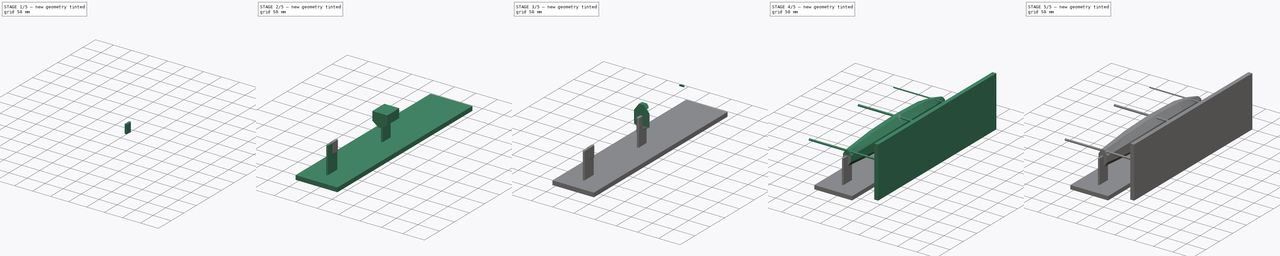
[diagram: build sequence overview — one tinted view per stage of 5, left to right]
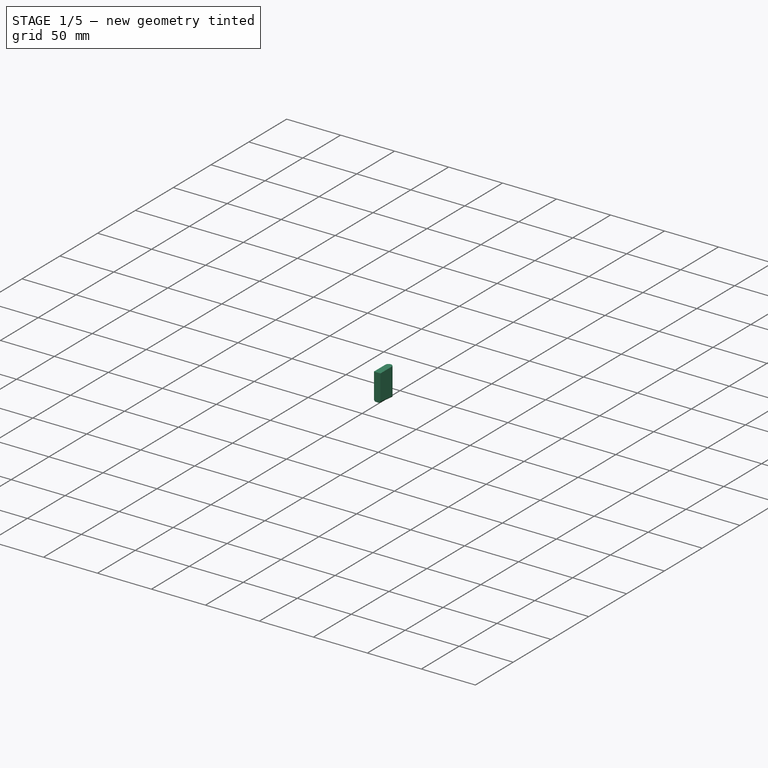
[diagram: stage 1 of 5 — iso view after this stage's code; geometry added in this stage tinted green]
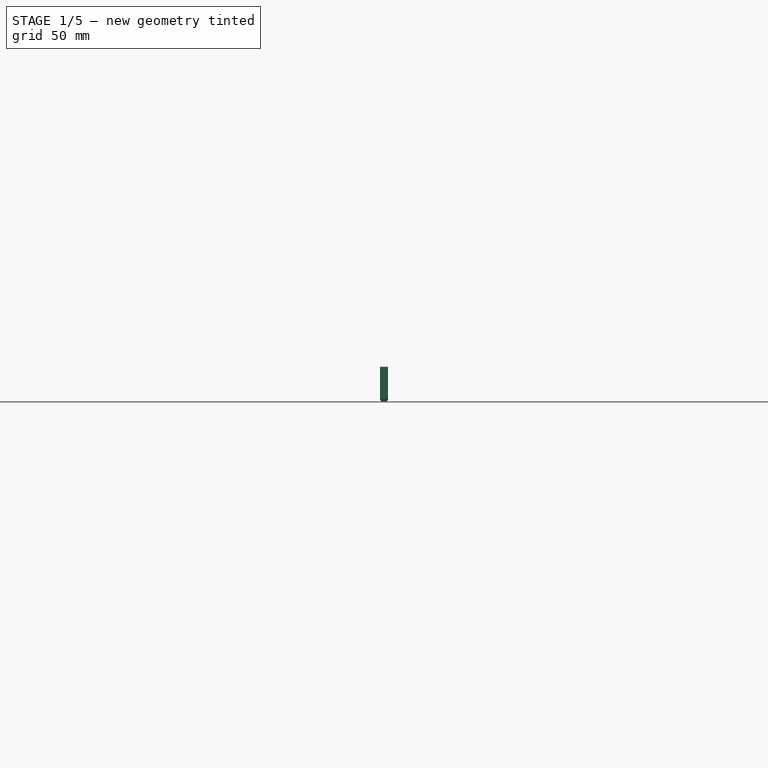
[diagram: stage 1 of 5 — front view after this stage's code; geometry added in this stage tinted green]
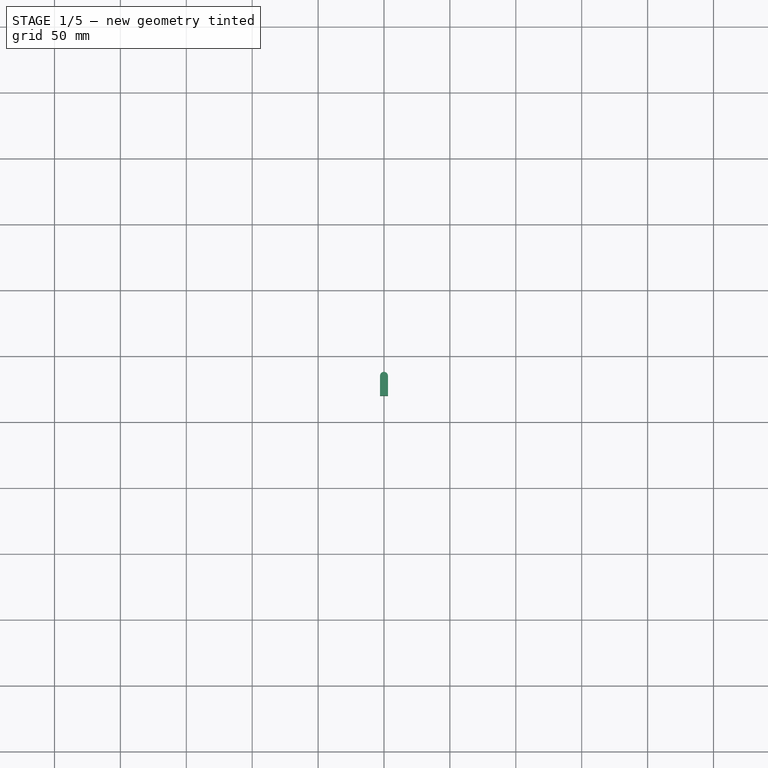
[diagram: stage 1 of 5 — top view after this stage's code; geometry added in this stage tinted green]
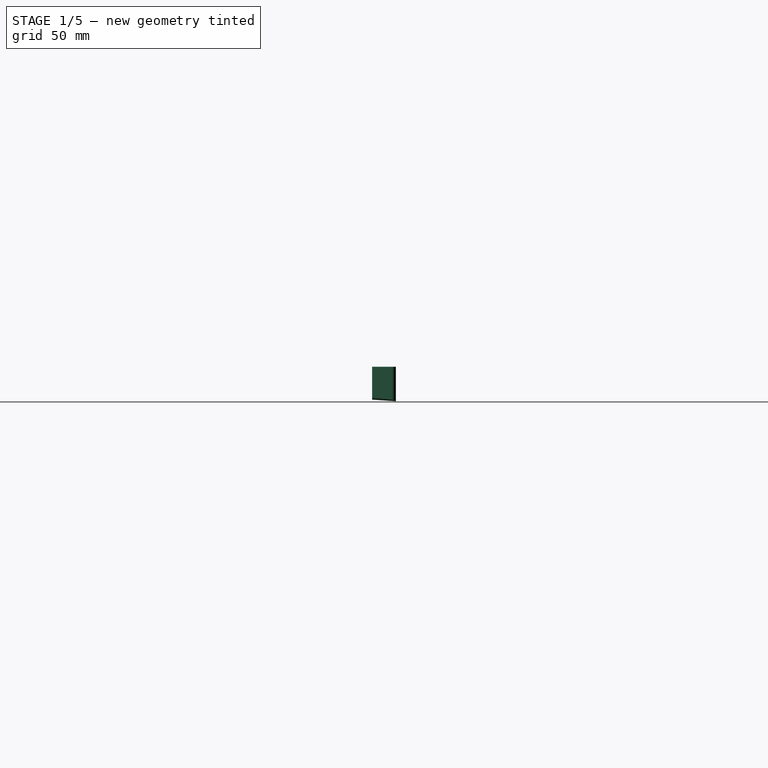
[diagram: stage 1 of 5 — right view after this stage's code; geometry added in this stage tinted green]
FCSTD DOCUMENT  (FreeCAD 0.18R4 (GitTag))
Label: O-cat2
License: All rights reserved
LicenseURL: http://en.wikipedia.org/wiki/All_rights_reserved
objects: Sketcher::SketchObject×20, PartDesign::Body×9, PartDesign::Pocket×9, PartDesign::FeatureBase×6, PartDesign::Pad×4, PartDesign::AdditiveLoft×1, PartDesign::Thickness×1
note: 64 computed .brp shape members not serialized (recipe doc carries the construction recipe); baked Part::Feature solids carry a one-line shape summary decoded from their .brp

FEATURE [Sketcher::SketchObject] Sketch020
  AttachmentOffset = pos=(0,0,180) rot=(0,0,1;0rad)
  MapMode = 5
  Placement = pos=(0,-180,-4e-14) rot=(1,0,0;1.5708rad)
  Support = -> [XZ_Plane004]
  sketch-geometry (15):
    g0: LineSegment StartX=-3.42793 StartY=-24.4504 StartZ=0 EndX=3.42793 EndY=-24.4504 EndZ=0
    g1: LineSegment StartX=3.42793 StartY=-24.4504 StartZ=0 EndX=10.2889 EndY=-36.0228 EndZ=0
    g2: LineSegment StartX=10.2889 StartY=-36.0228 StartZ=0 EndX=10.2889 EndY=-50.2299 EndZ=0
    g3: LineSegment StartX=10.2889 StartY=-50.2299 StartZ=0 EndX=2 EndY=-61.9681 EndZ=0
    g4: LineSegment StartX=2 StartY=-61.9681 StartZ=0 EndX=-2 EndY=-61.9681 EndZ=0
    g5: LineSegment StartX=-2 StartY=-61.9681 StartZ=0 EndX=-10.2889 EndY=-50.2299 EndZ=0
    g6: LineSegment StartX=-10.2889 StartY=-50.2299 StartZ=0 EndX=-10.2889 EndY=-36.0228 EndZ=0
    g7: LineSegment StartX=-10.2889 StartY=-36.0228 StartZ=0 EndX=-3.42793 EndY=-24.4504 EndZ=0
    g8: LineSegment [constr] StartX=-2 StartY=-61.9681 StartZ=0 EndX=0 EndY=0 EndZ=0
    g9: LineSegment [constr] StartX=0 StartY=0 StartZ=0 EndX=2 EndY=-61.9681 EndZ=0
    g10: LineSegment [constr] StartX=-10.2889 StartY=-50.2299 StartZ=0 EndX=0 EndY=0 EndZ=0
    g11: LineSegment [constr] StartX=0 StartY=0 StartZ=0 EndX=10.2889 EndY=-50.2299 EndZ=0
    g12: LineSegment [constr] StartX=-10.2889 StartY=-50.2299 StartZ=0 EndX=10.2889 EndY=-50.2299 EndZ=0
    g13: LineSegment [constr] StartX=-3.42793 StartY=-24.4504 StartZ=0 EndX=4e-16 EndY=0 EndZ=0
    g14: LineSegment [constr] StartX=0 StartY=0 StartZ=0 EndX=3.42793 EndY=-24.4504 EndZ=0
  constraints (32):
    c: Horizontal(g0)
    c: Vertical(g2)
    c: Horizontal(g4)
    c: Vertical(g6)
    c: Coincident(g1,g0)
    c: Coincident(g7,g0)
    c: Coincident(g7,g6)
    c: Coincident(g5,g6)
    c: Coincident(g5,g4)
    c: Coincident(g4,g3)
    c: Coincident(g2,g3)
    c: Coincident(g1,g2)
    c: Coincident(g8,g4)
    c: Coincident(g8,g-1)
    c: Coincident(g9,g-1)
    c: Coincident(g9,g3)
    c: Coincident(g10,g5)
    c: Coincident(g10,g-1)
    c: Coincident(g11,g-1)
    c: Coincident(g11,g2)
    c: Equal(g10,g11)
    c: Equal(g8,g9)
    c: Coincident(g12,g5)
    c: Coincident(g12,g2)
    c: Horizontal(g12)
    c: DistanceX(g4,g4) = 4
    c: Equal(g6,g2)
    c: Coincident(g13,g0)
    c: Coincident(g13,g-1)
    c: Coincident(g14,g-1)
    c: Coincident(g14,g0)
    c: Equal(g14,g13)
FEATURE [Sketcher::SketchObject] Sketch021
  AttachmentOffset = pos=(0,0,-90) rot=(0,0,1;0rad)
  MapMode = 5
  Placement = pos=(0,90,2e-14) rot=(1,0,0;1.5708rad)
  Support = -> [XZ_Plane004]
  sketch-geometry (15):
    g0: LineSegment StartX=-5.77135 StartY=-15.9921 StartZ=0 EndX=5.77135 EndY=-15.9921 EndZ=0
    g1: LineSegment StartX=5.77135 StartY=-15.9921 StartZ=0 EndX=15.8429 EndY=-31.1836 EndZ=0
    g2: LineSegment StartX=15.8429 StartY=-31.1836 StartZ=0 EndX=15.8429 EndY=-58.0688 EndZ=0
    g3: LineSegment StartX=15.8429 StartY=-58.0688 StartZ=0 EndX=3 EndY=-65.6345 EndZ=0
    g4: LineSegment StartX=3 StartY=-65.6345 StartZ=0 EndX=-3 EndY=-65.6345 EndZ=0
    g5: LineSegment StartX=-3 StartY=-65.6345 StartZ=0 EndX=-15.8429 EndY=-58.0688 EndZ=0
    g6: LineSegment StartX=-15.8429 StartY=-58.0688 StartZ=0 EndX=-15.8429 EndY=-31.1836 EndZ=0
    g7: LineSegment StartX=-15.8429 StartY=-31.1836 StartZ=0 EndX=-5.77135 EndY=-15.9921 EndZ=0
    g8: LineSegment [constr] StartX=0 StartY=0 StartZ=0 EndX=-15.8429 EndY=-58.0688 EndZ=0
    g9: LineSegment [constr] StartX=0 StartY=0 StartZ=0 EndX=15.8429 EndY=-58.0688 EndZ=0
    g10: LineSegment [constr] StartX=15.8429 StartY=-58.0688 StartZ=0 EndX=-15.8429 EndY=-58.0688 EndZ=0
    g11: LineSegment [constr] StartX=-3 StartY=-65.6345 StartZ=0 EndX=0 EndY=0 EndZ=0
    g12: LineSegment [constr] StartX=0 StartY=0 StartZ=0 EndX=3 EndY=-65.6345 EndZ=0
    g13: LineSegment [constr] StartX=-5.77135 StartY=-15.9921 StartZ=0 EndX=0 EndY=0 EndZ=0
    g14: LineSegment [constr] StartX=0 StartY=0 StartZ=0 EndX=5.77135 EndY=-15.9921 EndZ=0
  constraints (32):
    c: Horizontal(g0)
    c: Coincident(g0,g1)
    c: Coincident(g1,g2)
    c: Vertical(g2)
    c: Coincident(g2,g3)
    c: Coincident(g3,g4)
    c: Horizontal(g4)
    c: Coincident(g4,g5)
    c: Coincident(g5,g6)
    c: Vertical(g6)
    c: Coincident(g6,g7)
    c: Coincident(g7,g0)
    c: Coincident(g8,g-1)
    c: Coincident(g8,g5)
    c: Coincident(g-1,g9)
    c: Coincident(g9,g2)
    c: Coincident(g9,g10)
    c: Coincident(g10,g5)
    c: Equal(g9,g8)
    c: Horizontal(g10)
    c: Coincident(g11,g4)
    c: Coincident(g11,g-1)
    c: Coincident(g12,g-1)
    c: Coincident(g12,g3)
    c: Equal(g12,g11)
    c: DistanceX(g4,g4) = 6
    c: Equal(g2,g6)
    c: Coincident(g13,g0)
    c: Coincident(g13,g-1)
    c: Coincident(g14,g-1)
    c: Coincident(g14,g0)
    c: Equal(g14,g13)
FEATURE [Sketcher::SketchObject] Sketch022
  MapMode = 5
  Placement = pos=(0,0,0) rot=(1,0,0;1.5708rad)
  Support = -> [XZ_Plane004]
  sketch-geometry (15):
    g0: LineSegment StartX=-5.63325 StartY=-12.7774 StartZ=0 EndX=5.63325 EndY=-12.7774 EndZ=0
    g1: LineSegment StartX=5.63325 StartY=-12.7774 StartZ=0 EndX=17.6812 EndY=-28.9815 EndZ=0
    g2: LineSegment StartX=17.6812 StartY=-28.9815 StartZ=0 EndX=17.6812 EndY=-57.7634 EndZ=0
    g3: LineSegment StartX=17.6812 StartY=-57.7634 StartZ=0 EndX=3.5 EndY=-67.6731 EndZ=0
    g4: LineSegment StartX=3.5 StartY=-67.6731 StartZ=0 EndX=-3.5 EndY=-67.6731 EndZ=0
    g5: LineSegment StartX=-3.5 StartY=-67.6731 StartZ=0 EndX=-17.6812 EndY=-57.7634 EndZ=0
    g6: LineSegment StartX=-17.6812 StartY=-57.7634 StartZ=0 EndX=-17.6812 EndY=-28.9815 EndZ=0
    g7: LineSegment StartX=-17.6812 StartY=-28.9815 StartZ=0 EndX=-5.63325 EndY=-12.7774 EndZ=0
    g8: LineSegment [constr] StartX=-17.6812 StartY=-57.7634 StartZ=0 EndX=0 EndY=0 EndZ=0
    g9: LineSegment [constr] StartX=0 StartY=0 StartZ=0 EndX=17.6812 EndY=-57.7634 EndZ=0
    g10: LineSegment [constr] StartX=17.6812 StartY=-57.7634 StartZ=0 EndX=-17.6812 EndY=-57.7634 EndZ=0
    g11: LineSegment [constr] StartX=-3.5 StartY=-67.6731 StartZ=0 EndX=0 EndY=0 EndZ=0
    g12: LineSegment [constr] StartX=0 StartY=0 StartZ=0 EndX=3.5 EndY=-67.6731 EndZ=0
    g13: LineSegment [constr] StartX=-5.63325 StartY=-12.7774 StartZ=0 EndX=0 EndY=0 EndZ=0
    g14: LineSegment [constr] StartX=0 StartY=0 StartZ=0 EndX=5.63325 EndY=-12.7774 EndZ=0
  constraints (32):
    c: Horizontal(g0)
    c: Coincident(g0,g1)
    c: Coincident(g1,g2)
    c: Vertical(g2)
    c: Coincident(g2,g3)
    c: Coincident(g3,g4)
    c: Horizontal(g4)
    c: Coincident(g4,g5)
    c: Coincident(g5,g6)
    c: Vertical(g6)
    c: Coincident(g6,g7)
    c: Coincident(g7,g0)
    c: Coincident(g5,g8)
    c: Coincident(g8,g-1)
    c: Coincident(g8,g9)
    c: Coincident(g9,g2)
    c: Coincident(g9,g10)
    c: Coincident(g10,g8)
    c: Horizontal(g10)
    c: Coincident(g4,g11)
    c: Coincident(g11,g-1)
    c: Coincident(g11,g12)
    c: Coincident(g12,g3)
    c: Equal(g12,g11)
    c: Equal(g8,g9)
    c: DistanceX(g4,g4) = 7
    c: Equal(g6,g2)
    c: Coincident(g13,g0)
    c: Coincident(g13,g-1)
    c: Coincident(g14,g-1)
    c: Coincident(g14,g0)
    c: Equal(g14,g13)
FEATURE [Sketcher::SketchObject] Sketch023
  AttachmentOffset = pos=(0,0,90) rot=(0,0,1;0rad)
  MapMode = 5
  Placement = pos=(0,-90,-2e-14) rot=(1,0,0;1.5708rad)
  Support = -> [XZ_Plane004]
  sketch-geometry (15):
    g0: LineSegment StartX=-5.82901 StartY=-16.3793 StartZ=0 EndX=5.82901 EndY=-16.3793 EndZ=0
    g1: LineSegment StartX=5.82901 StartY=-16.3793 StartZ=0 EndX=16.2021 EndY=-31.1334 EndZ=0
    g2: LineSegment StartX=16.2021 StartY=-31.1334 StartZ=0 EndX=16.2021 EndY=-55.356 EndZ=0
    g3: LineSegment StartX=16.2021 StartY=-55.356 StartZ=0 EndX=3 EndY=-67.996 EndZ=0
    g4: LineSegment StartX=3 StartY=-67.996 StartZ=0 EndX=-3 EndY=-67.996 EndZ=0
    g5: LineSegment StartX=-3 StartY=-67.996 StartZ=0 EndX=-16.2021 EndY=-55.356 EndZ=0
    g6: LineSegment StartX=-16.2021 StartY=-55.356 StartZ=0 EndX=-16.2021 EndY=-31.1334 EndZ=0
    g7: LineSegment StartX=-16.2021 StartY=-31.1334 StartZ=0 EndX=-5.82901 EndY=-16.3793 EndZ=0
    g8: LineSegment [constr] StartX=-3 StartY=-67.996 StartZ=0 EndX=0 EndY=0 EndZ=0
    g9: LineSegment [constr] StartX=0 StartY=0 StartZ=0 EndX=3 EndY=-67.996 EndZ=0
    g10: LineSegment [constr] StartX=16.2021 StartY=-55.356 StartZ=0 EndX=-16.2021 EndY=-55.356 EndZ=0
    g11: LineSegment [constr] StartX=-16.2021 StartY=-55.356 StartZ=0 EndX=0 EndY=0 EndZ=0
    g12: LineSegment [constr] StartX=0 StartY=0 StartZ=0 EndX=16.2021 EndY=-55.356 EndZ=0
    g13: LineSegment [constr] StartX=5.82901 StartY=-16.3793 StartZ=0 EndX=0 EndY=0 EndZ=0
    g14: LineSegment [constr] StartX=0 StartY=0 StartZ=0 EndX=-5.82901 EndY=-16.3793 EndZ=0
  constraints (32):
    c: Horizontal(g0)
    c: Vertical(g2)
    c: Horizontal(g4)
    c: Coincident(g5,g6)
    c: Vertical(g6)
    c: Coincident(g6,g7)
    c: Coincident(g0,g7)
    c: Coincident(g0,g1)
    c: Coincident(g1,g2)
    c: Coincident(g2,g3)
    c: Coincident(g3,g4)
    c: Coincident(g4,g5)
    c: Coincident(g4,g8)
    c: Coincident(g8,g-1)
    c: Coincident(g8,g9)
    c: Coincident(g9,g3)
    c: Equal(g9,g8)
    c: Coincident(g10,g2)
    c: Coincident(g10,g5)
    c: Horizontal(g10)
    c: Coincident(g11,g5)
    c: Coincident(g11,g-1)
    c: Coincident(g12,g-1)
    c: Coincident(g12,g2)
    c: Equal(g12,g11)
    c: DistanceX(g4,g4) = 6
    c: Coincident(g13,g0)
    c: Coincident(g13,g-1)
    c: Coincident(g14,g-1)
    c: Coincident(g14,g0)
    c: Equal(g14,g13)
    c: Equal(g2,g6)
FEATURE [Sketcher::SketchObject] Sketch024
  AttachmentOffset = pos=(0,0,-135) rot=(0,0,1;0rad)
  MapMode = 5
  Placement = pos=(0,135,3e-14) rot=(1,0,0;1.5708rad)
  Support = -> [XZ_Plane004]
  sketch-geometry (15):
    g0: LineSegment StartX=-3.59355 StartY=-23.3294 StartZ=0 EndX=3.59355 EndY=-23.3294 EndZ=0
    g1: LineSegment StartX=3.59355 StartY=-23.3294 StartZ=0 EndX=10.8243 EndY=-35.7962 EndZ=0
    g2: LineSegment StartX=10.8243 StartY=-35.7962 StartZ=0 EndX=10.8243 EndY=-56.8981 EndZ=0
    g3: LineSegment StartX=10.8243 StartY=-56.8981 StartZ=0 EndX=2 EndY=-63.119 EndZ=0
    g4: LineSegment StartX=2 StartY=-63.119 StartZ=0 EndX=-2 EndY=-63.119 EndZ=0
    g5: LineSegment StartX=-2 StartY=-63.119 StartZ=0 EndX=-10.8243 EndY=-56.8981 EndZ=0
    g6: LineSegment StartX=-10.8243 StartY=-56.8981 StartZ=0 EndX=-10.8243 EndY=-35.7962 EndZ=0
    g7: LineSegment StartX=-10.8243 StartY=-35.7962 StartZ=0 EndX=-3.59355 EndY=-23.3294 EndZ=0
    g8: LineSegment [constr] StartX=-10.8243 StartY=-56.8981 StartZ=0 EndX=10.8243 EndY=-56.8981 EndZ=0
    g9: LineSegment [constr] StartX=-10.8243 StartY=-56.8981 StartZ=0 EndX=0 EndY=0 EndZ=0
    g10: LineSegment [constr] StartX=0 StartY=0 StartZ=0 EndX=10.8243 EndY=-56.8981 EndZ=0
    g11: LineSegment [constr] StartX=-2 StartY=-63.119 StartZ=0 EndX=0 EndY=0 EndZ=0
    g12: LineSegment [constr] StartX=0 StartY=0 StartZ=0 EndX=2 EndY=-63.119 EndZ=0
    g13: LineSegment [constr] StartX=-3.59355 StartY=-23.3294 StartZ=0 EndX=0 EndY=0 EndZ=0
    g14: LineSegment [constr] StartX=0 StartY=0 StartZ=0 EndX=3.59355 EndY=-23.3294 EndZ=0
  constraints (32):
    c: Horizontal(g0)
    c: Coincident(g0,g1)
    c: Coincident(g1,g2)
    c: Vertical(g2)
    c: Coincident(g2,g3)
    c: Coincident(g3,g4)
    c: Horizontal(g4)
    c: Coincident(g4,g5)
    c: Coincident(g5,g6)
    c: Vertical(g6)
    c: Coincident(g6,g7)
    c: Coincident(g7,g0)
    c: Coincident(g8,g5)
    c: Coincident(g8,g2)
    c: Horizontal(g8)
    c: Coincident(g9,g5)
    c: Coincident(g9,g-1)
    c: Coincident(g10,g-1)
    c: Coincident(g10,g2)
    c: Equal(g10,g9)
    c: Coincident(g11,g4)
    c: Coincident(g11,g-1)
    c: Coincident(g12,g-1)
    c: Coincident(g12,g3)
    c: Equal(g12,g11)
    c: DistanceX(g4,g4) = 4
    c: Equal(g2,g6)
    c: Coincident(g13,g0)
    c: Coincident(g13,g-1)
    c: Coincident(g14,g-1)
    c: Coincident(g14,g0)
    c: Equal(g14,g13)
FEATURE [Sketcher::SketchObject] Sketch025
  AttachmentOffset = pos=(0,0,-170) rot=(0,0,1;0rad)
  MapMode = 5
  Placement = pos=(0,170,3.77e-14) rot=(1,0,0;1.5708rad)
  Support = -> [XZ_Plane004]
  sketch-geometry (15):
    g0: LineSegment StartX=-1.18633 StartY=-33.2773 StartZ=0 EndX=1.18633 EndY=-33.2773 EndZ=0
    g1: LineSegment StartX=1.18633 StartY=-33.2773 StartZ=0 EndX=4.11729 EndY=-41.1944 EndZ=0
    g2: LineSegment StartX=4.11729 StartY=-41.1944 StartZ=0 EndX=4.11729 EndY=-54.529 EndZ=0
    g3: LineSegment StartX=4.11729 StartY=-54.529 StartZ=0 EndX=0.75 EndY=-58.3974 EndZ=0
    g4: LineSegment StartX=0.75 StartY=-58.3974 StartZ=0 EndX=-0.75 EndY=-58.3974 EndZ=0
    g5: LineSegment StartX=-0.75 StartY=-58.3974 StartZ=0 EndX=-4.11729 EndY=-54.529 EndZ=0
    g6: LineSegment StartX=-4.11729 StartY=-54.529 StartZ=0 EndX=-4.11729 EndY=-41.1944 EndZ=0
    g7: LineSegment StartX=-4.11729 StartY=-41.1944 StartZ=0 EndX=-1.18633 EndY=-33.2773 EndZ=0
    g8: LineSegment [constr] StartX=-4.11729 StartY=-54.529 StartZ=0 EndX=4.11729 EndY=-54.529 EndZ=0
    g9: LineSegment [constr] StartX=4.11729 StartY=-54.529 StartZ=0 EndX=0 EndY=0 EndZ=0
    g10: LineSegment [constr] StartX=-4.11729 StartY=-54.529 StartZ=0 EndX=0 EndY=0 EndZ=0
    g11: LineSegment [constr] StartX=-0.75 StartY=-58.3974 StartZ=0 EndX=0 EndY=0 EndZ=0
    g12: LineSegment [constr] StartX=0.75 StartY=-58.3974 StartZ=0 EndX=0 EndY=0 EndZ=0
    g13: LineSegment [constr] StartX=-1.18633 StartY=-33.2773 StartZ=0 EndX=0 EndY=0 EndZ=0
    g14: LineSegment [constr] StartX=0 StartY=0 StartZ=0 EndX=1.18633 EndY=-33.2773 EndZ=0
  constraints (32):
    c: Horizontal(g0)
    c: Coincident(g0,g1)
    c: Coincident(g1,g2)
    c: Vertical(g2)
    c: Coincident(g2,g3)
    c: Coincident(g3,g4)
    c: Horizontal(g4)
    c: Coincident(g4,g5)
    c: Coincident(g5,g6)
    c: Vertical(g6)
    c: Coincident(g6,g7)
    c: Coincident(g7,g0)
    c: Coincident(g8,g5)
    c: Coincident(g8,g2)
    c: Horizontal(g8)
    c: Coincident(g9,g2)
    c: Coincident(g9,g-1)
    c: Coincident(g10,g5)
    c: Coincident(g10,g-1)
    c: Equal(g10,g9)
    c: Coincident(g11,g4)
    c: Coincident(g12,g3)
    c: Coincident(g12,g11)
    c: Coincident(g11,g-1)
    c: Equal(g12,g11)
    c: DistanceX(g4,g4) = 1.5
    c: Equal(g2,g6)
    c: Coincident(g13,g0)
    c: Coincident(g14,g13)
    c: Coincident(g14,g0)
    c: Coincident(g13,g-1)
    c: Equal(g13,g14)
FEATURE [Sketcher::SketchObject] Sketch026
  AttachmentOffset = pos=(0,0,-180) rot=(0,0,1;0rad)
  MapMode = 5
  Placement = pos=(0,180,4e-14) rot=(1,0,0;1.5708rad)
  Support = -> [XZ_Plane004]
  sketch-geometry (15):
    g0: LineSegment StartX=-0.59492 StartY=-41.985 StartZ=0 EndX=0.59492 EndY=-41.985 EndZ=0
    g1: LineSegment StartX=0.59492 StartY=-41.985 StartZ=0 EndX=1.32897 EndY=-44.3587 EndZ=0
    g2: LineSegment StartX=1.32897 StartY=-44.3587 StartZ=0 EndX=1.32897 EndY=-52.2537 EndZ=0
    g3: LineSegment StartX=1.32897 StartY=-52.2537 StartZ=0 EndX=0.25 EndY=-55.018 EndZ=0
    g4: LineSegment StartX=0.25 StartY=-55.018 StartZ=0 EndX=-0.25 EndY=-55.018 EndZ=0
    g5: LineSegment StartX=-0.25 StartY=-55.018 StartZ=0 EndX=-1.32897 EndY=-52.2537 EndZ=0
    g6: LineSegment StartX=-1.32897 StartY=-52.2537 StartZ=0 EndX=-1.32897 EndY=-44.3587 EndZ=0
    g7: LineSegment StartX=-1.32897 StartY=-44.3587 StartZ=0 EndX=-0.59492 EndY=-41.985 EndZ=0
    g8: LineSegment [constr] StartX=-1.32897 StartY=-52.2537 StartZ=0 EndX=1.32897 EndY=-52.2537 EndZ=0
    g9: LineSegment [constr] StartX=1.32897 StartY=-52.2537 StartZ=0 EndX=0 EndY=0 EndZ=0
    g10: LineSegment [constr] StartX=-1.32897 StartY=-52.2537 StartZ=0 EndX=0 EndY=0 EndZ=0
    g11: LineSegment [constr] StartX=-0.25 StartY=-55.018 StartZ=0 EndX=0 EndY=0 EndZ=0
    g12: LineSegment [constr] StartX=0.25 StartY=-55.018 StartZ=0 EndX=0 EndY=0 EndZ=0
    g13: LineSegment [constr] StartX=-0.59492 StartY=-41.985 StartZ=0 EndX=0 EndY=0 EndZ=0
    g14: LineSegment [constr] StartX=0 StartY=0 StartZ=0 EndX=0.59492 EndY=-41.985 EndZ=0
  constraints (32):
    c: Horizontal(g0)
    c: Coincident(g0,g1)
    c: Coincident(g1,g2)
    c: Vertical(g2)
    c: Coincident(g2,g3)
    c: Coincident(g3,g4)
    c: Horizontal(g4)
    c: Coincident(g4,g5)
    c: Coincident(g5,g6)
    c: Vertical(g6)
    c: Coincident(g6,g7)
    c: Coincident(g7,g0)
    c: Coincident(g8,g5)
    c: Coincident(g8,g2)
    c: Horizontal(g8)
    c: Coincident(g9,g2)
    c: Coincident(g9,g-1)
    c: Coincident(g10,g5)
    c: Coincident(g10,g-1)
    c: Equal(g10,g9)
    c: Coincident(g11,g4)
    c: Coincident(g12,g3)
    c: Coincident(g12,g11)
    c: Coincident(g11,g-1)
    c: Equal(g12,g11)
    c: DistanceX(g4,g4) = 0.5
    c: Equal(g2,g6)
    c: Coincident(g13,g0)
    c: Coincident(g14,g13)
    c: Coincident(g14,g0)
    c: Coincident(g13,g-1)
    c: Equal(g13,g14)
FEATURE [PartDesign::AdditiveLoft] AdditiveLoft003
  Closed = false
  Placement = pos=(0,0,0) rot=(1,0,0;1.5708rad)
  Profile = -> Sketch020
  Ruled = true
  Sections = -> [Sketch023,Sketch022,Sketch021,Sketch024,Sketch025,Sketch026]
FEATURE [PartDesign::Body] Body008  label="Centerboard"
  BaseFeature = -> AdditiveLoft003
  Group = -> [Clone004,Sketch033,Pocket005,Sketch035,Pocket006]
  Origin = -> Origin009
  Tip = -> Pocket006
FEATURE [PartDesign::FeatureBase] Clone005
  BaseFeature = -> AdditiveLoft003
  Placement = pos=(0,0,0) rot=(1,0,0;1.5708rad)
FEATURE [Sketcher::SketchObject] Sketch037
  MapMode = 5
  Support = -> [XY_Plane010]
  sketch-geometry (8):
    g0: ArcOfCircle CenterX=0 CenterY=-165 CenterZ=0 NormalX=0 NormalY=0 NormalZ=1 AngleXU=0 Radius=3 StartAngle=6.616e-13 EndAngle=3.14159
    g1: ArcOfCircle CenterX=-1.613e-12 CenterY=-226.293 CenterZ=0 NormalX=0 NormalY=0 NormalZ=1 AngleXU=0 Radius=3 StartAngle=3.14159 EndAngle=6.28319
    g2: LineSegment StartX=-3 StartY=-165 StartZ=0 EndX=-3 EndY=-226.293 EndZ=0
    g3: LineSegment StartX=3 StartY=-165 StartZ=0 EndX=3 EndY=-226.293 EndZ=0
    g4: LineSegment StartX=-138.855 StartY=278.102 StartZ=0 EndX=246.804 EndY=278.102 EndZ=0
    g5: LineSegment StartX=246.804 StartY=278.102 StartZ=0 EndX=246.804 EndY=-431.141 EndZ=0
    g6: LineSegment StartX=246.804 StartY=-431.141 StartZ=0 EndX=-138.855 EndY=-431.141 EndZ=0
    g7: LineSegment StartX=-138.855 StartY=-431.141 StartZ=0 EndX=-138.855 EndY=278.102 EndZ=0
  constraints (17):
    c: Tangent(g0,g3) = 1.5708
    c: Tangent(g0,g2) = -1.5708
    c: Tangent(g2,g1) = -1.5708
    c: Tangent(g3,g1) = 1.5708
    c: Vertical(g2)
    c: Equal(g0,g1)
    c: Radius(g0) = 3
    c: PointOnObject(g0,g-2)
    c: DistanceY(g0,g-1) = 165
    c: Coincident(g4,g5)
    c: Coincident(g5,g6)
    c: Coincident(g6,g7)
    c: Coincident(g7,g4)
    c: Horizontal(g4)
    c: Horizontal(g6)
    c: Vertical(g5)
    c: Vertical(g7)
FEATURE [PartDesign::Pocket] Pocket007
  BaseFeature = -> Clone005
  Length = 5
  Length2 = 100
  Placement = pos=(0,0,0) rot=(1,0,0;1.5708rad)
  Profile = -> Sketch037
  Type = 1
FEATURE [PartDesign::Body] Body010  label="Centerboard Cuts"
  Group = -> [Sketch038,Pad002,Sketch039,Pad003]
  Origin = -> Origin011
  Tip = -> Pad003
FEATURE [Sketcher::SketchObject] Sketch040
  MapMode = 5
  Placement = pos=(0,0,0) rot=(0.57735,0.57735,0.57735;2.0944rad)
  Support = -> [YZ_Plane010]
  sketch-geometry (4):
    g0: LineSegment StartX=-225.469 StartY=7.87792 StartZ=0 EndX=-156.298 EndY=7.87792 EndZ=0
    g1: LineSegment StartX=-156.298 StartY=7.87792 StartZ=0 EndX=-156.298 EndY=-37 EndZ=0
    g2: LineSegment StartX=-156.298 StartY=-37 StartZ=0 EndX=-225.469 EndY=-37 EndZ=0
    g3: LineSegment StartX=-225.469 StartY=-37 StartZ=0 EndX=-225.469 EndY=7.87792 EndZ=0
  constraints (9):
    c: Coincident(g0,g1)
    c: Coincident(g1,g2)
    c: Coincident(g2,g3)
    c: Coincident(g3,g0)
    c: Horizontal(g0)
    c: Vertical(g1)
    c: Vertical(g3)
    c: DistanceY(g1,g-1) = 37
    c: Horizontal(g2)
FEATURE [PartDesign::Pocket] Pocket008
  BaseFeature = -> Pocket007
  Length = 5
  Length2 = 100
  Midplane = true
  Placement = pos=(0,0,0) rot=(1,0,0;1.5708rad)
  Profile = -> Sketch040
  Type = 1
FEATURE [PartDesign::Body] Body009  label="Rudder"
  BaseFeature = -> AdditiveLoft003
  Group = -> [Clone005,Sketch037,Pocket007,Sketch040,Pocket008]
  Origin = -> Origin010
  Tip = -> Pocket008
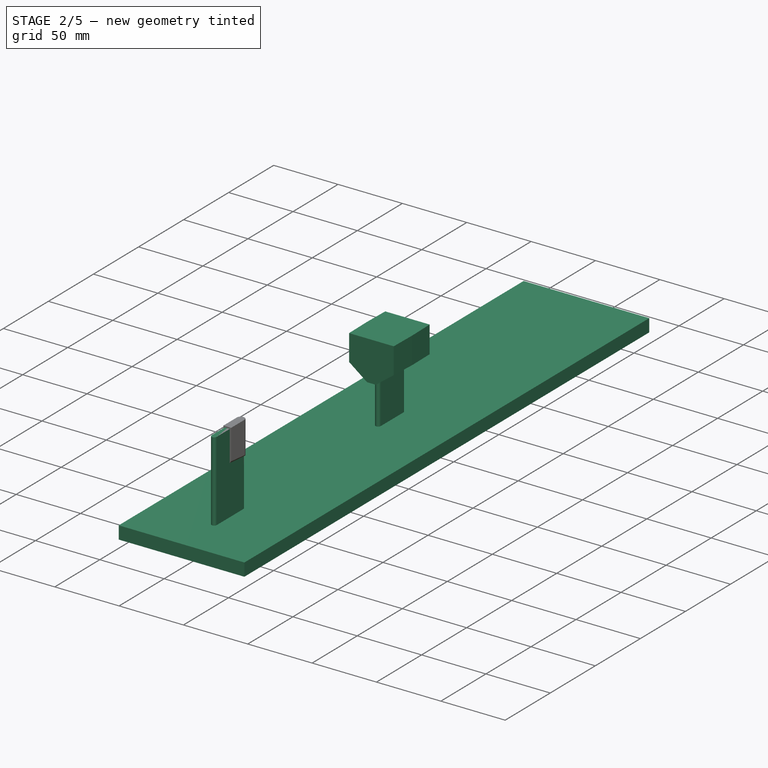
[diagram: stage 2 of 5 — iso view after this stage's code; geometry added in this stage tinted green]
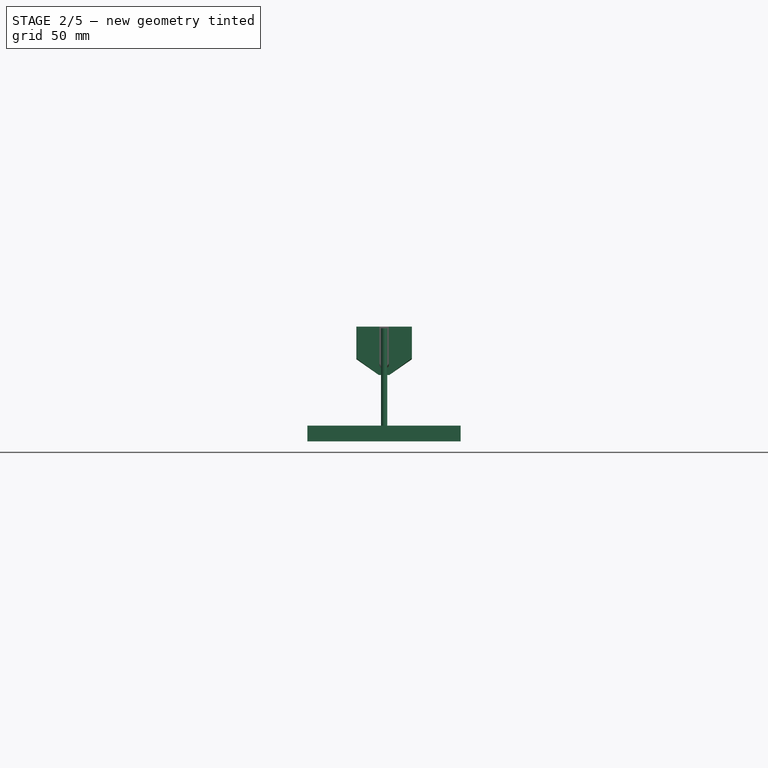
[diagram: stage 2 of 5 — front view after this stage's code; geometry added in this stage tinted green]
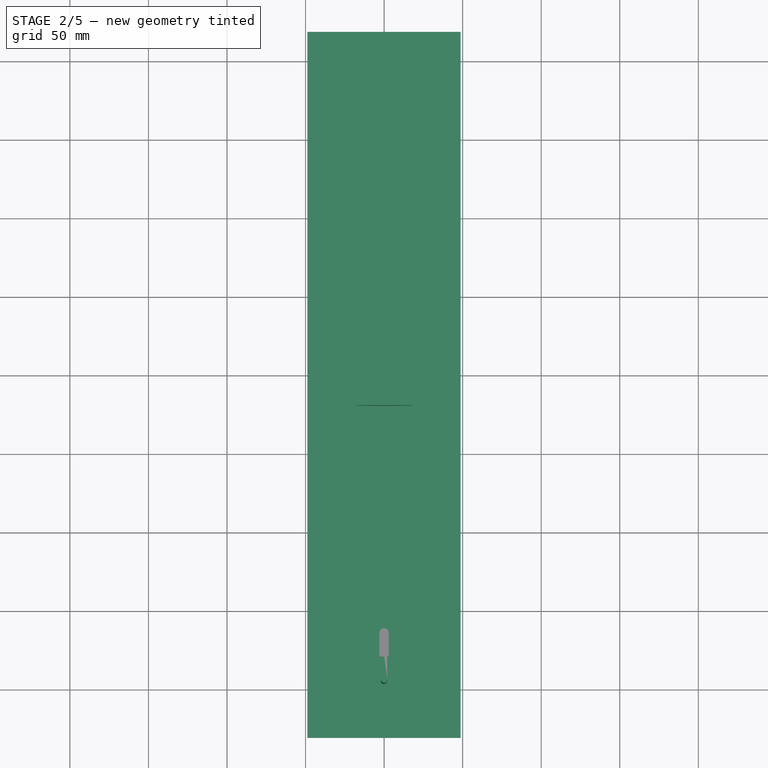
[diagram: stage 2 of 5 — top view after this stage's code; geometry added in this stage tinted green]
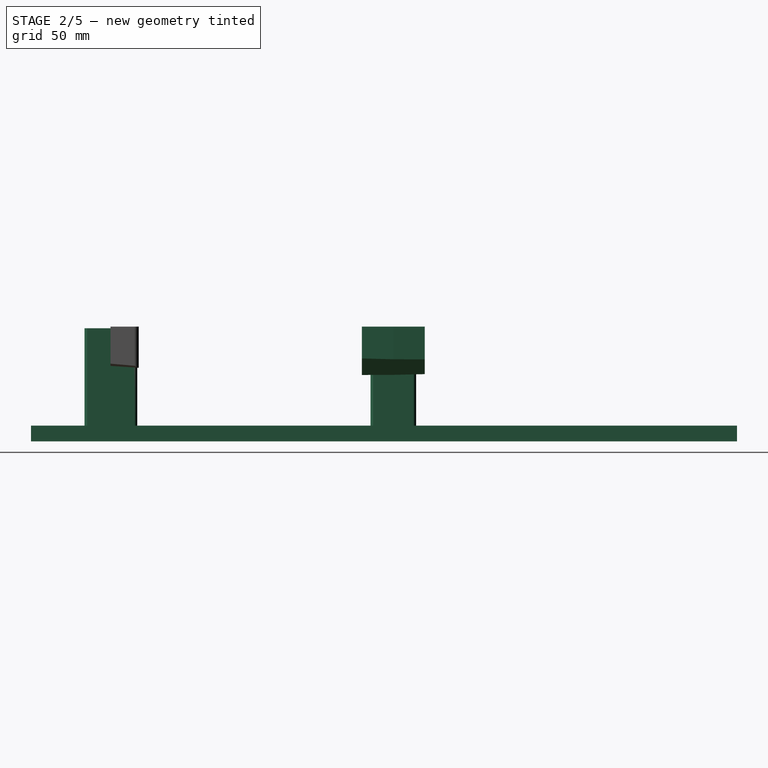
[diagram: stage 2 of 5 — right view after this stage's code; geometry added in this stage tinted green]
FEATURE [PartDesign::Body] Body007  label="Nose Post"
  BaseFeature = -> AdditiveLoft003
  Group = -> [Clone003,Sketch032,Pocket004]
  Origin = -> Origin008
  Tip = -> Pocket004
FEATURE [PartDesign::FeatureBase] Clone004
  BaseFeature = -> AdditiveLoft003
  Placement = pos=(0,0,0) rot=(1,0,0;1.5708rad)
FEATURE [Sketcher::SketchObject] Sketch033
  MapMode = 5
  Placement = pos=(0,0,0) rot=(0.57735,0.57735,0.57735;2.0944rad)
  Support = -> [YZ_Plane009]
  sketch-geometry (8):
    g0: LineSegment StartX=-20 StartY=-37 StartZ=0 EndX=-20 EndY=-84.5308 EndZ=0
    g1: LineSegment StartX=-20 StartY=-84.5308 StartZ=0 EndX=-217.748 EndY=-84.5308 EndZ=0
    g2: LineSegment StartX=-217.748 StartY=-84.5308 StartZ=0 EndX=-217.748 EndY=0 EndZ=0
    g3: LineSegment StartX=-217.748 StartY=0 StartZ=0 EndX=223.691 EndY=0 EndZ=0
    g4: LineSegment StartX=223.691 StartY=0 StartZ=0 EndX=223.691 EndY=-82.1457 EndZ=0
    g5: LineSegment StartX=223.691 StartY=-82.1457 StartZ=0 EndX=20 EndY=-82.1457 EndZ=0
    g6: LineSegment StartX=20 StartY=-82.1457 StartZ=0 EndX=20 EndY=-37 EndZ=0
    g7: LineSegment StartX=20 StartY=-37 StartZ=0 EndX=-20 EndY=-37 EndZ=0
  constraints (20):
    c: Vertical(g0)
    c: Coincident(g0,g1)
    c: Horizontal(g1)
    c: Coincident(g1,g2)
    c: PointOnObject(g2,g-1)
    c: Vertical(g2)
    c: Coincident(g2,g3)
    c: PointOnObject(g3,g-1)
    c: Coincident(g3,g4)
    c: Vertical(g4)
    c: Coincident(g4,g5)
    c: Horizontal(g5)
    c: Coincident(g5,g6)
    c: Vertical(g6)
    c: Coincident(g6,g7)
    c: Coincident(g7,g0)
    c: Horizontal(g7)
    c: DistanceX(g0,g-1) = 20
    c: DistanceX(g-1,g6) = 20
    c: DistanceY(g0,g-1) = 37
FEATURE [PartDesign::Pocket] Pocket005
  BaseFeature = -> Clone004
  Length = 5
  Length2 = 100
  Midplane = true
  Placement = pos=(0,0,0) rot=(1,0,0;1.5708rad)
  Profile = -> Sketch033
  Type = 1
FEATURE [Sketcher::SketchObject] Sketch038
  AttachmentOffset = pos=(0,0,-100) rot=(0,0,1;0rad)
  MapMode = 5
  Placement = pos=(0,0,-100) rot=(0,0,1;0rad)
  Support = -> [XY_Plane011]
  sketch-geometry (4):
    g0: LineSegment StartX=-48.8687 StartY=218.729 StartZ=0 EndX=48.75 EndY=218.729 EndZ=0
    g1: LineSegment StartX=48.75 StartY=218.729 StartZ=0 EndX=48.75 EndY=-230.585 EndZ=0
    g2: LineSegment StartX=48.75 StartY=-230.585 StartZ=0 EndX=-48.8687 EndY=-230.585 EndZ=0
    g3: LineSegment StartX=-48.8687 StartY=-230.585 StartZ=0 EndX=-48.8687 EndY=218.729 EndZ=0
  constraints (8):
    c: Coincident(g0,g1)
    c: Coincident(g1,g2)
    c: Coincident(g2,g3)
    c: Coincident(g3,g0)
    c: Horizontal(g0)
    c: Horizontal(g2)
    c: Vertical(g1)
    c: Vertical(g3)
FEATURE [PartDesign::Pad] Pad002
  Length = 10
  Length2 = 100
  Profile = -> Sketch038
  Reversed = true
  Type = 0
FEATURE [Sketcher::SketchObject] Sketch039
  MapMode = 5
  Placement = pos=(0,0,-100) rot=(0,0,1;0rad)
  Support = -> [Pad002]
  sketch-geometry (8):
    g0: ArcOfCircle CenterX=0 CenterY=-165 CenterZ=0 NormalX=0 NormalY=0 NormalZ=1 AngleXU=0 Radius=2 StartAngle=-5.3e-15 EndAngle=3.14159
    g1: ArcOfCircle CenterX=0 CenterY=-194.553 CenterZ=0 NormalX=0 NormalY=0 NormalZ=1 AngleXU=0 Radius=2 StartAngle=3.14159 EndAngle=6.28319
    g2: LineSegment StartX=-2 StartY=-165 StartZ=0 EndX=-2 EndY=-194.553 EndZ=0
    g3: LineSegment StartX=2 StartY=-165 StartZ=0 EndX=2 EndY=-194.553 EndZ=0
    g4: ArcOfCircle CenterX=0 CenterY=12.5 CenterZ=0 NormalX=0 NormalY=0 NormalZ=1 AngleXU=0 Radius=2 StartAngle=0 EndAngle=3.14159
    g5: ArcOfCircle CenterX=1e-16 CenterY=-12.5 CenterZ=0 NormalX=0 NormalY=0 NormalZ=1 AngleXU=0 Radius=2 StartAngle=3.14159 EndAngle=6.28319
    g6: LineSegment StartX=-2 StartY=12.5 StartZ=0 EndX=-2 EndY=-12.5 EndZ=0
    g7: LineSegment StartX=2 StartY=12.5 StartZ=0 EndX=2 EndY=-12.5 EndZ=0
  constraints (19):
    c: Tangent(g0,g3) = 1.5708
    c: Tangent(g0,g2) = -1.5708
    c: Tangent(g2,g1) = -1.5708
    c: Tangent(g3,g1) = 1.5708
    c: Vertical(g2)
    c: Equal(g0,g1)
    c: PointOnObject(g0,g-2)
    c: DistanceY(g0,g-1) = 165
    c: Radius(g0) = 2
    c: Tangent(g4,g7) = 1.5708
    c: Tangent(g4,g6) = -1.5708
    c: Tangent(g6,g5) = -1.5708
    c: Tangent(g7,g5) = 1.5708
    c: Vertical(g6)
    c: Equal(g4,g5)
    c: PointOnObject(g4,g-2)
    c: Radius(g4) = 2
    c: DistanceY(g-1,g4) = 12.5
    c: DistanceY(g5,g-1) = 12.5
FEATURE [PartDesign::Pad] Pad003
  BaseFeature = -> Pad002
  Length = 62
  Length2 = 100
  Profile = -> Sketch039
  Type = 0
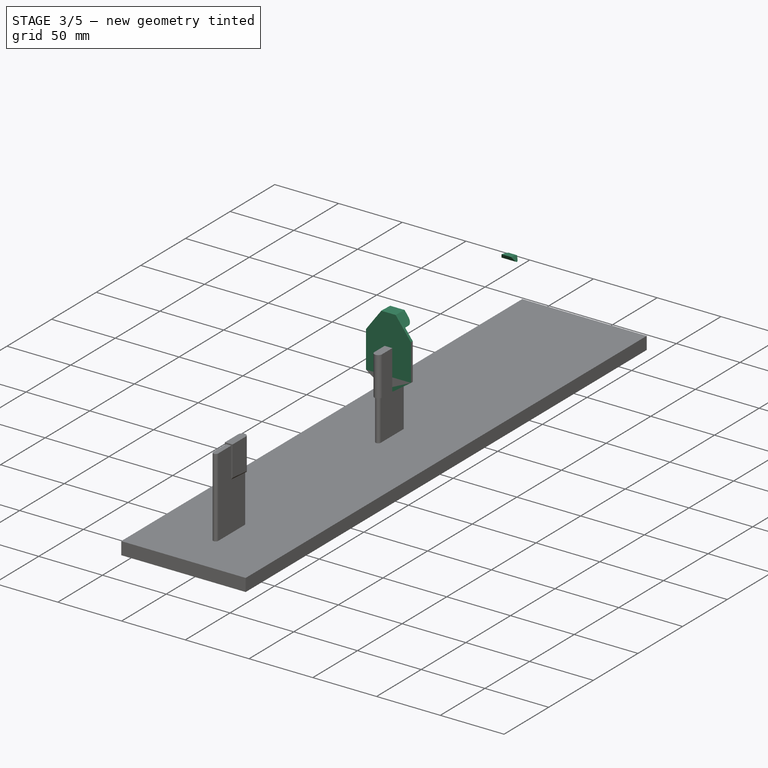
[diagram: stage 3 of 5 — iso view after this stage's code; geometry added in this stage tinted green]
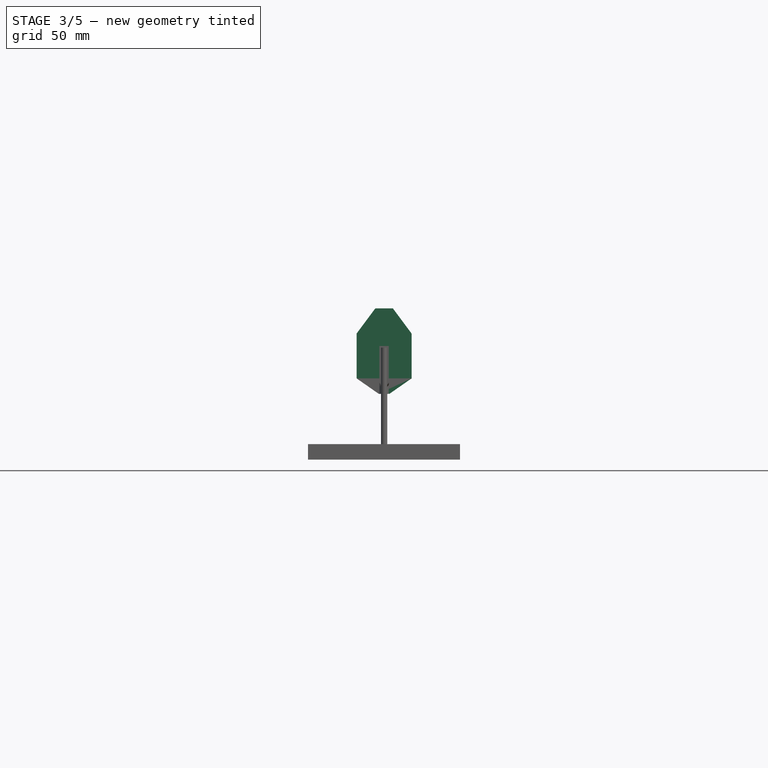
[diagram: stage 3 of 5 — front view after this stage's code; geometry added in this stage tinted green]
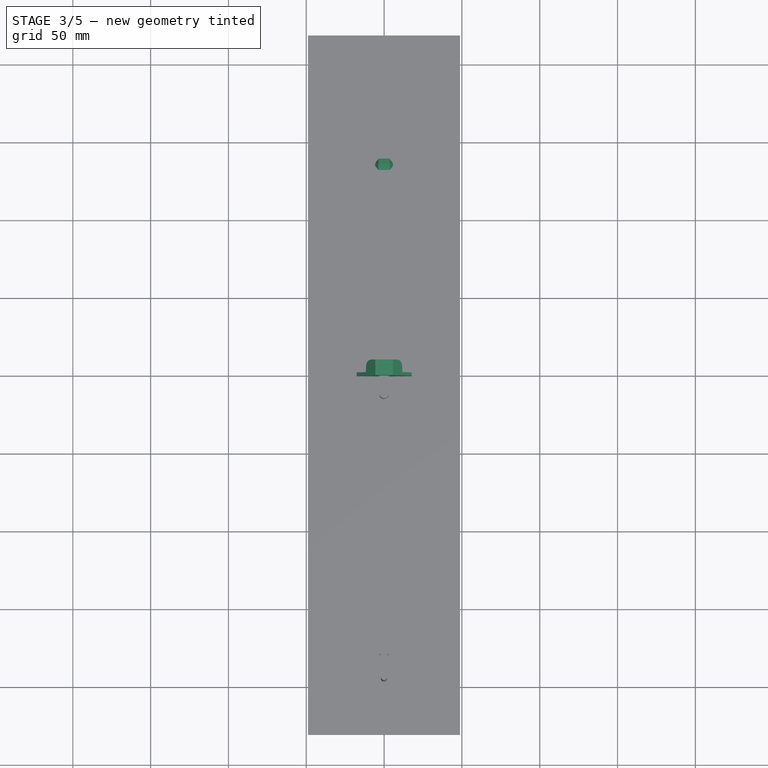
[diagram: stage 3 of 5 — top view after this stage's code; geometry added in this stage tinted green]
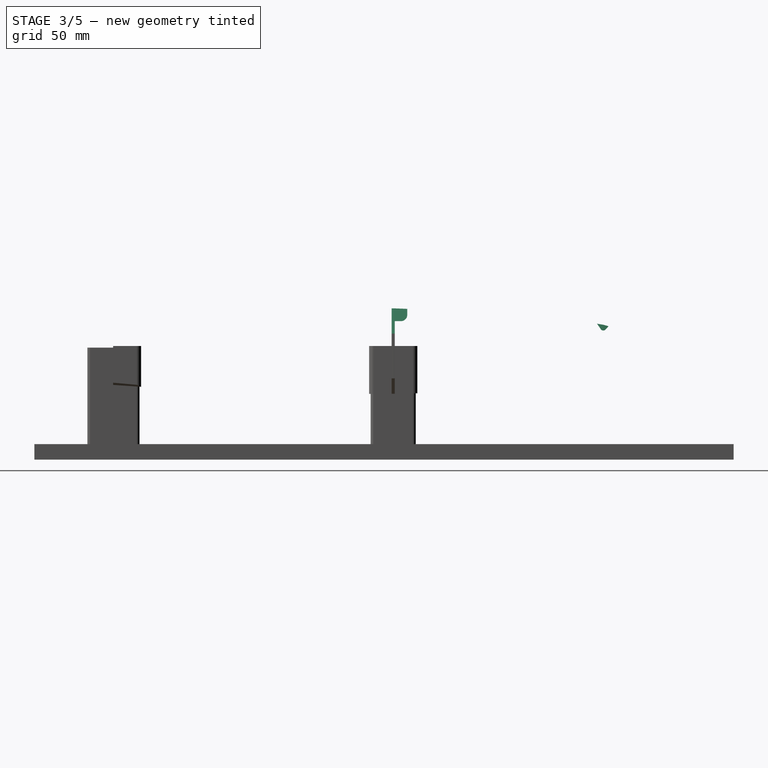
[diagram: stage 3 of 5 — right view after this stage's code; geometry added in this stage tinted green]
FEATURE [PartDesign::Body] Body004  label="Back Post"
  BaseFeature = -> AdditiveLoft003
  Group = -> [Clone001,Sketch027,Pocket001]
  Origin = -> Origin005
  Tip = -> Pocket001
FEATURE [PartDesign::FeatureBase] Clone002
  BaseFeature = -> AdditiveLoft003
  Placement = pos=(0,0,0) rot=(1,0,0;1.5708rad)
FEATURE [Sketcher::SketchObject] Sketch028
  MapMode = 5
  Placement = pos=(0,0,0) rot=(0.57735,0.57735,0.57735;2.0944rad)
  Support = -> [YZ_Plane006]
  sketch-geometry (11):
    g0: LineSegment StartX=-1 StartY=0 StartZ=0 EndX=-1 EndY=-88.2472 EndZ=0
    g1: LineSegment StartX=-1 StartY=-88.2472 StartZ=0 EndX=1 EndY=-88.2472 EndZ=0
    g2: LineSegment StartX=1 StartY=-88.2472 StartZ=0 EndX=1 EndY=-21 EndZ=0
    g3: LineSegment StartX=1 StartY=-21 StartZ=0 EndX=5 EndY=-21 EndZ=0
    g4: LineSegment StartX=9 StartY=-17 StartZ=0 EndX=9 EndY=0 EndZ=0
    g5: LineSegment StartX=9 StartY=0 StartZ=0 EndX=191.334 EndY=0 EndZ=0
    g6: LineSegment StartX=-1 StartY=0 StartZ=0 EndX=-230.179 EndY=0 EndZ=0
    g7: LineSegment StartX=-230.179 StartY=0 StartZ=0 EndX=-230.179 EndY=-99.5486 EndZ=0
    g8: LineSegment StartX=-230.179 StartY=-99.5486 StartZ=0 EndX=191.334 EndY=-99.5486 EndZ=0
    g9: LineSegment StartX=191.334 StartY=-99.5486 StartZ=0 EndX=191.334 EndY=0 EndZ=0
    g10: ArcOfCircle CenterX=5 CenterY=-17 CenterZ=0 NormalX=0 NormalY=0 NormalZ=1 AngleXU=0 Radius=4 StartAngle=4.71239 EndAngle=6.28319
  constraints (28):
    c: PointOnObject(g0,g-1)
    c: Vertical(g0)
    c: Coincident(g0,g1)
    c: Horizontal(g1)
    c: Coincident(g1,g2)
    c: Vertical(g2)
    c: Coincident(g2,g3)
    c: Horizontal(g3)
    c: PointOnObject(g4,g-1)
    c: Coincident(g4,g5)
    c: PointOnObject(g5,g-1)
    c: Coincident(g0,g6)
    c: PointOnObject(g6,g-1)
    c: Coincident(g6,g7)
    c: Vertical(g7)
    c: Coincident(g7,g8)
    c: Horizontal(g8)
    c: Coincident(g8,g9)
    c: Coincident(g9,g5)
    c: Vertical(g9)
    c: DistanceX(g0,g-1) = 1
    c: Vertical(g4)
    c: DistanceX(g-1,g2) = 1
    c: Tangent(g3,g10) = -1.5708
    c: Tangent(g4,g10) = -1.5708
    c: Radius(g10) = 4
    c: DistanceX(g-1,g10) = 5
    c: DistanceY(g10,g-1) = 17
FEATURE [PartDesign::Pocket] Pocket002
  BaseFeature = -> Clone002
  Length = 5
  Length2 = 100
  Midplane = true
  Placement = pos=(0,0,0) rot=(1,0,0;1.5708rad)
  Profile = -> Sketch028
  Type = 1
FEATURE [PartDesign::Body] Body005  label="Front Post"
  BaseFeature = -> AdditiveLoft003
  Group = -> [Clone002,Sketch028,Pocket002,Sketch031,Pocket003]
  Origin = -> Origin006
  Tip = -> Pocket003
FEATURE [PartDesign::FeatureBase] Clone003
  BaseFeature = -> AdditiveLoft003
  Placement = pos=(0,0,0) rot=(1,0,0;1.5708rad)
FEATURE [Sketcher::SketchObject] Sketch032
  MapMode = 5
  Placement = pos=(0,0,0) rot=(0.57735,0.57735,0.57735;2.0944rad)
  Support = -> [YZ_Plane008]
  sketch-geometry (8):
    g0: LineSegment StartX=-199.332 StartY=74.0783 StartZ=0 EndX=282.157 EndY=74.0783 EndZ=0
    g1: LineSegment StartX=282.157 StartY=74.0783 StartZ=0 EndX=282.157 EndY=-109.747 EndZ=0
    g2: LineSegment StartX=282.157 StartY=-109.747 StartZ=0 EndX=-199.332 EndY=-109.747 EndZ=0
    g3: LineSegment StartX=-199.332 StartY=-109.747 StartZ=0 EndX=-199.332 EndY=74.0783 EndZ=0
    g4: ArcOfCircle CenterX=136.693 CenterY=3.21146 CenterZ=0 NormalX=0 NormalY=0 NormalZ=1 AngleXU=0 Radius=19.4179 StartAngle=5.55923 EndAngle=10.0289
    g5: ArcOfCircle CenterX=135 CenterY=-25 CenterZ=0 NormalX=0 NormalY=0 NormalZ=1 AngleXU=0 Radius=2 StartAngle=3.7457 EndAngle=5.55923
    g6: LineSegment StartX=120.711 StartY=-7.81849 StartZ=0 EndX=133.354 EndY=-26.1361 EndZ=0
    g7: LineSegment StartX=151.24 StartY=-9.65004 StartZ=0 EndX=136.498 EndY=-26.3247 EndZ=0
  constraints (15):
    c: Coincident(g0,g1)
    c: Coincident(g1,g2)
    c: Coincident(g2,g3)
    c: Coincident(g3,g0)
    c: Horizontal(g0)
    c: Horizontal(g2)
    c: Vertical(g1)
    c: Vertical(g3)
    c: Tangent(g4,g7) = 1.5708
    c: Tangent(g4,g6) = -1.5708
    c: Tangent(g6,g5) = -1.5708
    c: Tangent(g7,g5) = 1.5708
    c: Radius(g5) = 2
    c: DistanceX(g-1,g5) = 135
    c: DistanceY(g5,g-1) = 25
FEATURE [PartDesign::Pocket] Pocket004
  BaseFeature = -> Clone003
  Length = 5
  Length2 = 100
  Midplane = true
  Placement = pos=(0,0,0) rot=(1,0,0;1.5708rad)
  Profile = -> Sketch032
  Type = 1
FEATURE [Sketcher::SketchObject] Sketch035
  MapMode = 5
  Support = -> [XY_Plane009]
  sketch-geometry (8):
    g0: ArcOfCircle CenterX=0 CenterY=12.5 CenterZ=0 NormalX=0 NormalY=0 NormalZ=1 AngleXU=0 Radius=3 StartAngle=2e-16 EndAngle=3.14159
    g1: ArcOfCircle CenterX=0 CenterY=-12.5 CenterZ=0 NormalX=0 NormalY=0 NormalZ=1 AngleXU=0 Radius=3 StartAngle=3.14159 EndAngle=6.28319
    g2: LineSegment StartX=-3 StartY=12.5 StartZ=0 EndX=-3 EndY=-12.5 EndZ=0
    g3: LineSegment StartX=3 StartY=12.5 StartZ=0 EndX=3 EndY=-12.5 EndZ=0
    g4: LineSegment StartX=-32.598 StartY=26.142 StartZ=0 EndX=45.0223 EndY=26.142 EndZ=0
    g5: LineSegment StartX=45.0223 StartY=26.142 StartZ=0 EndX=45.0223 EndY=-36.3593 EndZ=0
    g6: LineSegment StartX=45.0223 StartY=-36.3593 StartZ=0 EndX=-32.598 EndY=-36.3593 EndZ=0
    g7: LineSegment StartX=-32.598 StartY=-36.3593 StartZ=0 EndX=-32.598 EndY=26.142 EndZ=0
  constraints (18):
    c: Tangent(g0,g3) = 1.5708
    c: Tangent(g0,g2) = -1.5708
    c: Tangent(g2,g1) = -1.5708
    c: Tangent(g3,g1) = 1.5708
    c: Vertical(g2)
    c: Equal(g0,g1)
    c: PointOnObject(g0,g-2)
    c: DistanceY(g-1,g0) = 12.5
    c: DistanceY(g1,g-1) = 12.5
    c: Radius(g0) = 3
    c: Coincident(g4,g5)
    c: Coincident(g5,g6)
    c: Coincident(g6,g7)
    c: Coincident(g7,g4)
    c: Horizontal(g4)
    c: Horizontal(g6)
    c: Vertical(g5)
    c: Vertical(g7)
FEATURE [PartDesign::Pocket] Pocket006
  BaseFeature = -> Pocket005
  Length = 5
  Length2 = 100
  Placement = pos=(0,0,0) rot=(1,0,0;1.5708rad)
  Profile = -> Sketch035
  Type = 1
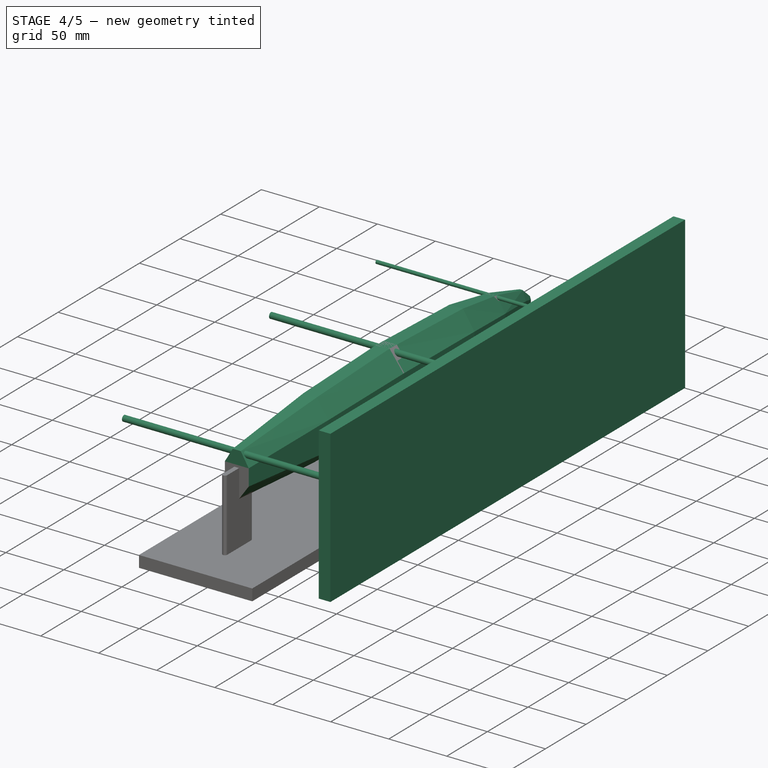
[diagram: stage 4 of 5 — iso view after this stage's code; geometry added in this stage tinted green]
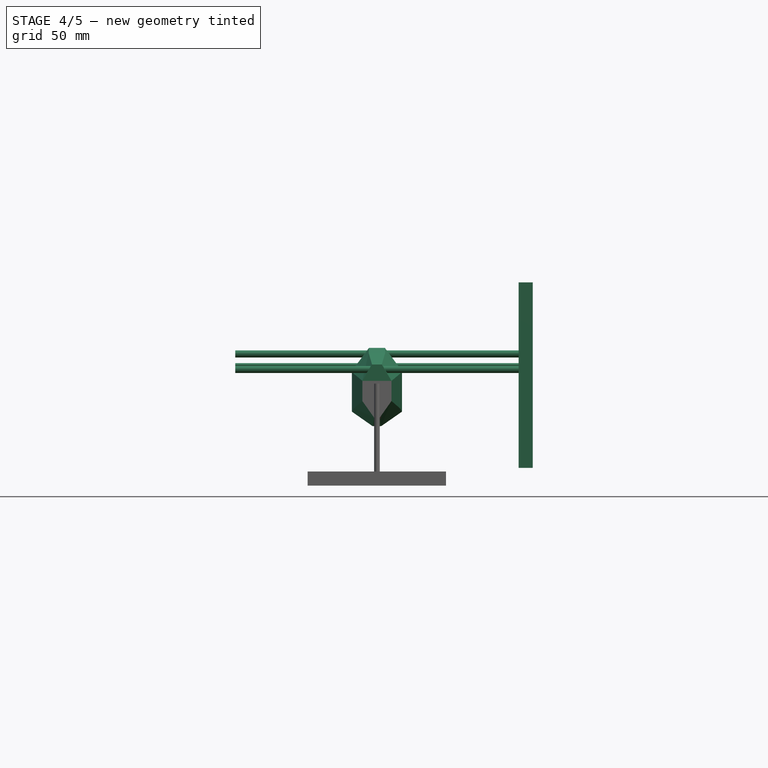
[diagram: stage 4 of 5 — front view after this stage's code; geometry added in this stage tinted green]
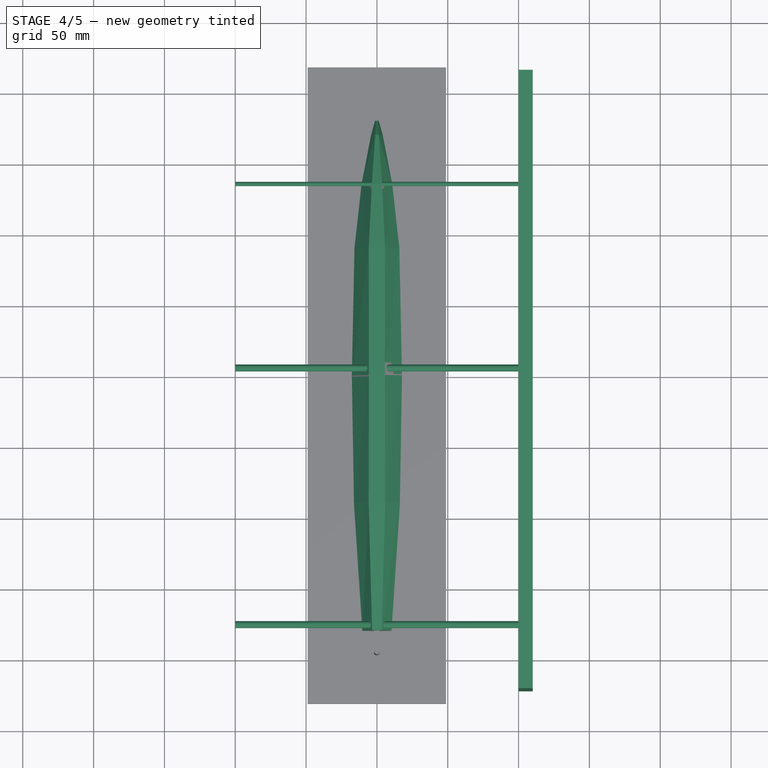
[diagram: stage 4 of 5 — top view after this stage's code; geometry added in this stage tinted green]
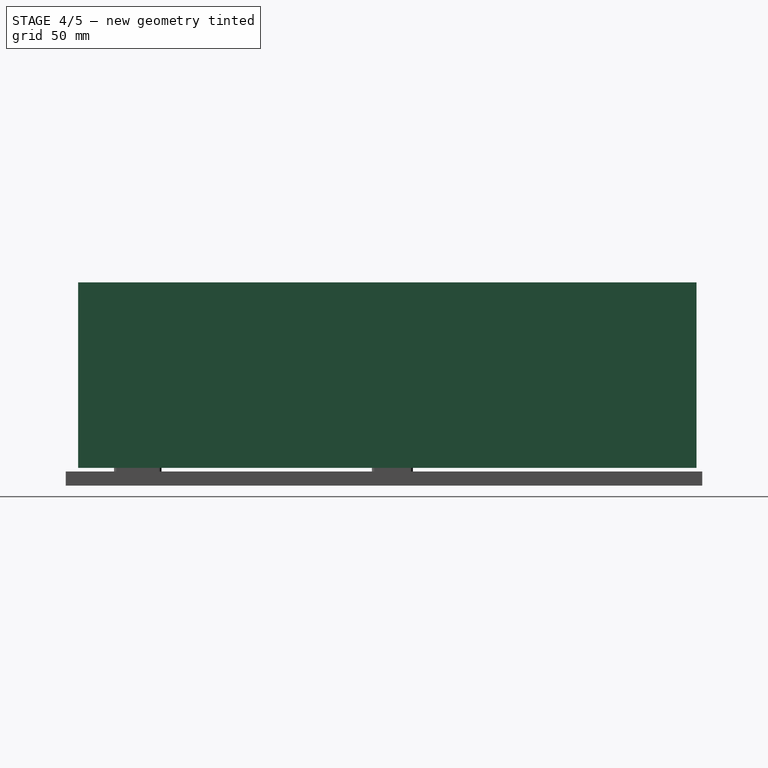
[diagram: stage 4 of 5 — right view after this stage's code; geometry added in this stage tinted green]
FEATURE [PartDesign::Body] Body  label="Infill Ribs"
  BaseFeature = -> AdditiveLoft003
  Group = -> [Clone,Sketch,Pocket]
  Origin = -> Origin
  Tip = -> Pocket
FEATURE [PartDesign::FeatureBase] Clone001
  BaseFeature = -> AdditiveLoft003
  Placement = pos=(0,0,0) rot=(1,0,0;1.5708rad)
FEATURE [Sketcher::SketchObject] Sketch029
  AttachmentOffset = pos=(0,0,100) rot=(0,0,1;0rad)
  MapMode = 5
  Placement = pos=(100,-2.22e-14,2.22e-14) rot=(0.57735,0.57735,0.57735;2.0944rad)
  Support = -> [YZ_Plane007]
  sketch-geometry (4):
    g0: LineSegment StartX=-221.873 StartY=33.5177 StartZ=0 EndX=214.648 EndY=33.5177 EndZ=0
    g1: LineSegment StartX=214.648 StartY=33.5177 StartZ=0 EndX=214.648 EndY=-97.4688 EndZ=0
    g2: LineSegment StartX=214.648 StartY=-97.4688 StartZ=0 EndX=-221.873 EndY=-97.4688 EndZ=0
    g3: LineSegment StartX=-221.873 StartY=-97.4688 StartZ=0 EndX=-221.873 EndY=33.5177 EndZ=0
  constraints (8):
    c: Coincident(g0,g1)
    c: Coincident(g1,g2)
    c: Coincident(g2,g3)
    c: Coincident(g3,g0)
    c: Horizontal(g0)
    c: Horizontal(g2)
    c: Vertical(g1)
    c: Vertical(g3)
FEATURE [PartDesign::Pad] Pad
  Length = 10
  Length2 = 100
  Placement = pos=(0,0,0) rot=(0.57735,0.57735,0.57735;2.0944rad)
  Profile = -> Sketch029
  Type = 0
FEATURE [Sketcher::SketchObject] Sketch030
  MapMode = 5
  Placement = pos=(100,-2.3e-14,2.2e-14) rot=(-0.57735,-0.57735,0.57735;2.0944rad)
  Support = -> [Pad]
  sketch-geometry (3):
    g0: Circle CenterX=5 CenterY=17 CenterZ=0 NormalX=0 NormalY=0 NormalZ=1 AngleXU=0 Radius=2.5
    g1: Circle CenterX=-176 CenterY=28 CenterZ=0 NormalX=0 NormalY=0 NormalZ=1 AngleXU=0 Radius=2.5
    g2: Circle CenterX=135 CenterY=25 CenterZ=0 NormalX=0 NormalY=0 NormalZ=1 AngleXU=0 Radius=1.5
  constraints (9):
    c: DistanceX(g-1,g0) = 5
    c: DistanceY(g-1,g0) = 17
    c: DistanceX(g1,g-1) = 176
    c: DistanceY(g-1,g1) = 28
    c: Diameter(g1) = 5
    c: Equal(g1,g0)
    c: DistanceX(g-1,g2) = 135
    c: DistanceY(g-1,g2) = 25
    c: Radius(g2) = 1.5
FEATURE [PartDesign::Pad] Pad001
  BaseFeature = -> Pad
  Length = 200
  Length2 = 100
  Placement = pos=(0,0,0) rot=(0.57735,0.57735,0.57735;2.0944rad)
  Profile = -> Sketch030
  Type = 0
FEATURE [PartDesign::Body] Body006  label="Post Cut"
  Group = -> [Sketch029,Pad,Sketch030,Pad001]
  Origin = -> Origin007
  Tip = -> Pad001
FEATURE [Sketcher::SketchObject] Sketch031
  MapMode = 5
  Placement = pos=(2e-16,1,-3e-16) rot=(-1,0,0;1.5708rad)
  Support = -> [Pocket002]
  sketch-geometry (4):
    g0: ArcOfCircle CenterX=0 CenterY=48.4666 CenterZ=0 NormalX=0 NormalY=0 NormalZ=1 AngleXU=0 Radius=12.6215 StartAngle=0 EndAngle=3.14159
    g1: ArcOfCircle CenterX=-7e-16 CenterY=37.9081 CenterZ=0 NormalX=0 NormalY=0 NormalZ=1 AngleXU=0 Radius=12.6215 StartAngle=3.14159 EndAngle=6.28319
    g2: LineSegment StartX=-12.6215 StartY=48.4666 StartZ=0 EndX=-12.6215 EndY=37.9081 EndZ=0
    g3: LineSegment StartX=12.6215 StartY=48.4666 StartZ=0 EndX=12.6215 EndY=37.9081 EndZ=0
  constraints (7):
    c: Tangent(g0,g3) = 1.5708
    c: Tangent(g0,g2) = -1.5708
    c: Tangent(g2,g1) = -1.5708
    c: Tangent(g3,g1) = 1.5708
    c: Vertical(g2)
    c: Equal(g0,g1)
    c: PointOnObject(g0,g-2)
FEATURE [PartDesign::Pocket] Pocket003
  BaseFeature = -> Pocket002
  Length = 5
  Length2 = 100
  Placement = pos=(0,0,0) rot=(1,0,0;1.5708rad)
  Profile = -> Sketch031
  Type = 0
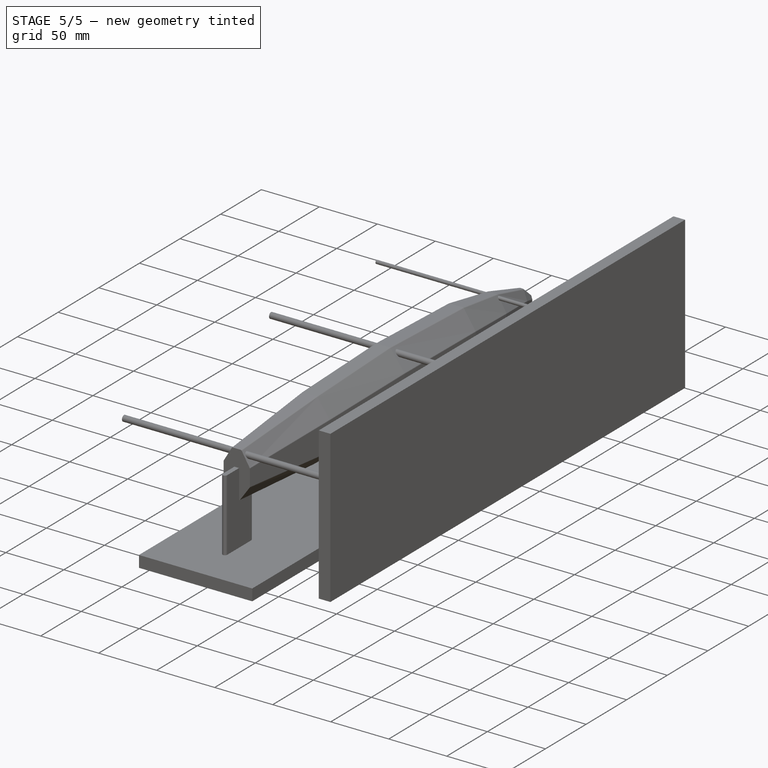
[diagram: stage 5 of 5 — iso view after this stage's code; geometry added in this stage tinted green]
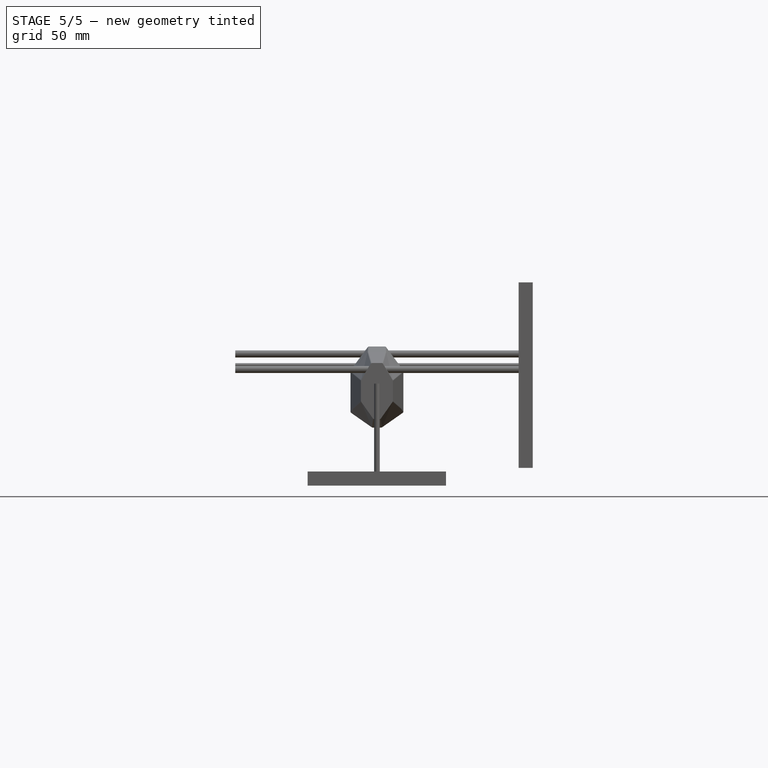
[diagram: stage 5 of 5 — front view after this stage's code; geometry added in this stage tinted green]
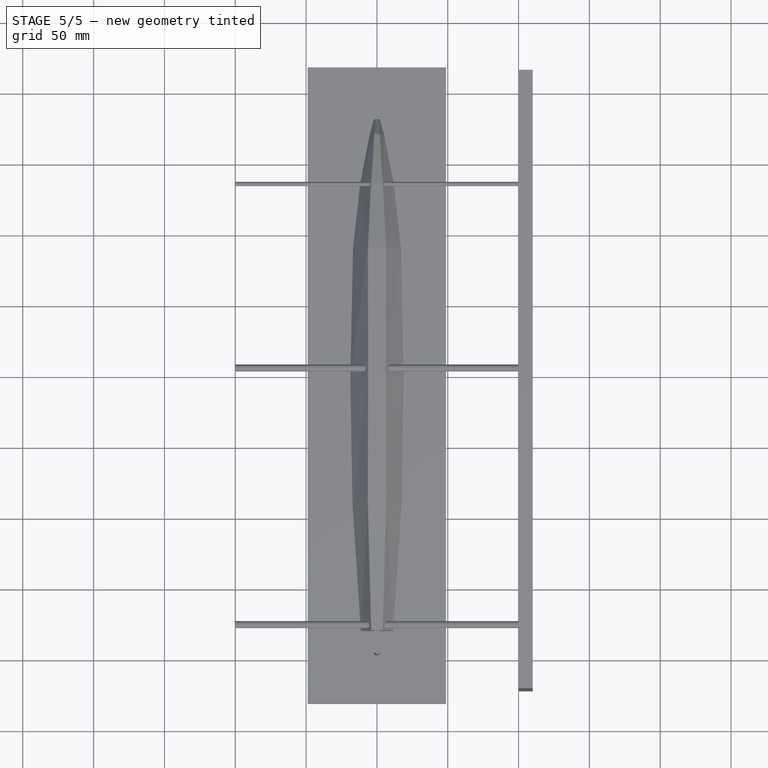
[diagram: stage 5 of 5 — top view after this stage's code; geometry added in this stage tinted green]
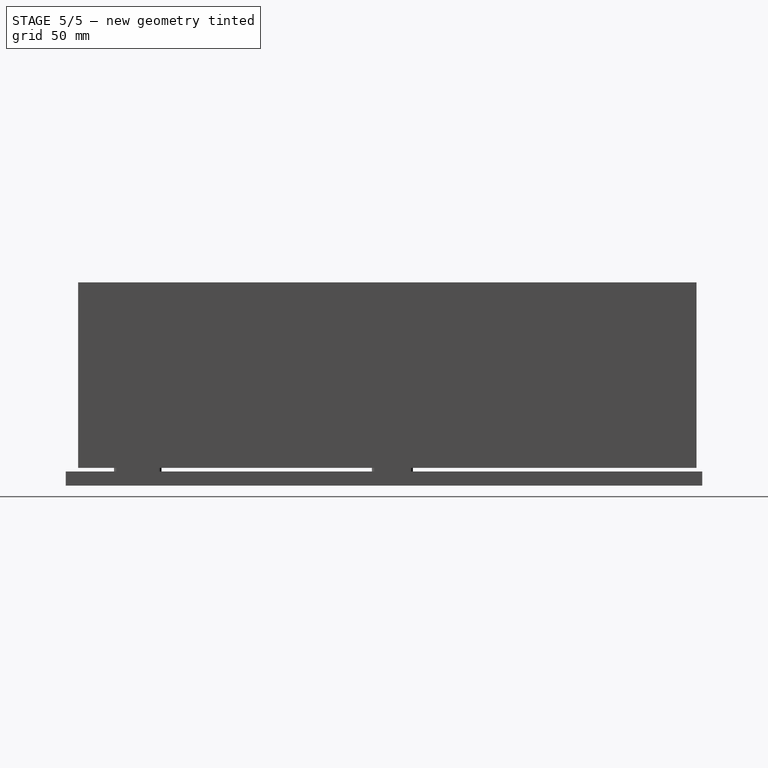
[diagram: stage 5 of 5 — right view after this stage's code; geometry added in this stage tinted green]
FEATURE [PartDesign::Thickness] Thickness
  Base = -> AdditiveLoft003 [Face1]
  BaseFeature = -> AdditiveLoft003
  Join = 0
  Mode = 0
  Value = 1
FEATURE [PartDesign::Body] Body003  label="Skin"
  Group = -> [Sketch020,Sketch023,Sketch022,Sketch021,Sketch024,Sketch025,AdditiveLoft003,Sketch026,Thickness]
  Origin = -> Origin004
  Tip = -> Thickness
FEATURE [PartDesign::FeatureBase] Clone
  BaseFeature = -> AdditiveLoft003
  Placement = pos=(0,0,0) rot=(1,0,0;1.5708rad)
FEATURE [Sketcher::SketchObject] Sketch
  MapMode = 5
  Placement = pos=(0,-180,7.99e-14) rot=(1,0,0;1.5708rad)
  Support = -> [Clone]
  sketch-geometry (24):
    g0: LineSegment StartX=-31.25 StartY=0 StartZ=0 EndX=-0.25 EndY=0 EndZ=0
    g1: LineSegment StartX=-0.25 StartY=0 StartZ=0 EndX=-0.25 EndY=-36.5 EndZ=0
    g2: LineSegment StartX=-0.25 StartY=-36.5 StartZ=0 EndX=-31.25 EndY=-36.5 EndZ=0
    g3: LineSegment StartX=-31.25 StartY=-36.5 StartZ=0 EndX=-31.25 EndY=0 EndZ=0
    g4: LineSegment StartX=0.25 StartY=-36.5 StartZ=0 EndX=36.8724 EndY=-36.5 EndZ=0
    g5: LineSegment StartX=36.8724 StartY=-36.5 StartZ=0 EndX=36.8724 EndY=0 EndZ=0
    g6: LineSegment StartX=36.8724 StartY=0 StartZ=0 EndX=0.25 EndY=0 EndZ=0
    g7: LineSegment StartX=0.25 StartY=0 StartZ=0 EndX=0.25 EndY=-36.5 EndZ=0
    g8: LineSegment StartX=-0.25 StartY=-37 StartZ=0 EndX=-31.25 EndY=-37 EndZ=0
    g9: LineSegment StartX=-31.25 StartY=-37 StartZ=0 EndX=-31.25 EndY=-52 EndZ=0
    g10: LineSegment StartX=-31.25 StartY=-52 StartZ=0 EndX=-0.25 EndY=-52 EndZ=0
    g11: LineSegment StartX=-0.25 StartY=-52 StartZ=0 EndX=-0.25 EndY=-37 EndZ=0
    g12: LineSegment StartX=-0.25 StartY=-52.5 StartZ=0 EndX=-30.75 EndY=-52.5 EndZ=0
    g13: LineSegment StartX=-30.75 StartY=-52.5 StartZ=0 EndX=-30.75 EndY=-75.3844 EndZ=0
    g14: LineSegment StartX=-30.75 StartY=-75.3844 StartZ=0 EndX=-0.25 EndY=-75.3844 EndZ=0
    g15: LineSegment StartX=-0.25 StartY=-75.3844 StartZ=0 EndX=-0.25 EndY=-52.5 EndZ=0
    g16: LineSegment StartX=0.25 StartY=-52.5 StartZ=0 EndX=36.3099 EndY=-52.5 EndZ=0
    g17: LineSegment StartX=36.3099 StartY=-52.5 StartZ=0 EndX=36.3099 EndY=-74.75 EndZ=0
    g18: LineSegment StartX=36.3099 StartY=-74.75 StartZ=0 EndX=0.25 EndY=-74.75 EndZ=0
    g19: LineSegment StartX=0.25 StartY=-74.75 StartZ=0 EndX=0.25 EndY=-52.5 EndZ=0
    g20: LineSegment StartX=0.25 StartY=-37 StartZ=0 EndX=36.25 EndY=-37 EndZ=0
    g21: LineSegment StartX=36.25 StartY=-37 StartZ=0 EndX=36.25 EndY=-52 EndZ=0
    g22: LineSegment StartX=36.25 StartY=-52 StartZ=0 EndX=0.25 EndY=-52 EndZ=0
    g23: LineSegment StartX=0.25 StartY=-52 StartZ=0 EndX=0.25 EndY=-37 EndZ=0
  constraints (50):
    c: Coincident(g0,g1)
    c: Coincident(g1,g2)
    c: Coincident(g2,g3)
    c: Coincident(g3,g0)
    c: Horizontal(g0)
    c: Horizontal(g2)
    c: Vertical(g1)
    c: Vertical(g3)
    c: PointOnObject(g0,g-1)
    c: Coincident(g4,g5)
    c: Coincident(g5,g6)
    c: Coincident(g6,g7)
    c: Coincident(g7,g4)
    c: Horizontal(g4)
    c: Horizontal(g6)
    c: Vertical(g5)
    c: Vertical(g7)
    c: PointOnObject(g5,g-1)
    c: Coincident(g8,g9)
    c: Coincident(g9,g10)
    c: Coincident(g10,g11)
    c: Coincident(g11,g8)
    c: Horizontal(g8)
    c: Horizontal(g10)
    c: Vertical(g9)
    c: Vertical(g11)
    c: Coincident(g12,g13)
    c: Coincident(g13,g14)
    c: Coincident(g14,g15)
    c: Coincident(g15,g12)
    c: Horizontal(g12)
    c: Horizontal(g14)
    c: Vertical(g13)
    c: Vertical(g15)
    c: Coincident(g16,g17)
    c: Coincident(g17,g18)
    c: Coincident(g18,g19)
    c: Coincident(g19,g16)
    c: Horizontal(g16)
    c: Horizontal(g18)
    c: Vertical(g17)
    c: Vertical(g19)
    c: Coincident(g20,g21)
    c: Coincident(g21,g22)
    c: Coincident(g22,g23)
    c: Coincident(g23,g20)
    c: Horizontal(g20)
    c: Horizontal(g22)
    c: Vertical(g21)
    c: Vertical(g23)
FEATURE [PartDesign::Pocket] Pocket
  BaseFeature = -> Clone
  Length = 5
  Length2 = 100
  Placement = pos=(0,0,0) rot=(1,0,0;1.5708rad)
  Profile = -> Sketch
  Type = 1
FEATURE [Sketcher::SketchObject] Sketch027
  MapMode = 5
  Placement = pos=(0,0,0) rot=(0.57735,0.57735,0.57735;2.0944rad)
  Support = -> [YZ_Plane005]
  sketch-geometry (7):
    g0: LineSegment StartX=-172 StartY=0 StartZ=0 EndX=-172 EndY=-28 EndZ=0
    g1: LineSegment StartX=-176 StartY=-32 StartZ=0 EndX=-179 EndY=-32 EndZ=0
    g2: LineSegment StartX=-179 StartY=-32 StartZ=0 EndX=-179 EndY=-97.6987 EndZ=0
    g3: LineSegment StartX=-179 StartY=-97.6987 StartZ=0 EndX=215.857 EndY=-97.6987 EndZ=0
    g4: LineSegment StartX=215.857 StartY=-97.6987 StartZ=0 EndX=215.857 EndY=0 EndZ=0
    g5: LineSegment StartX=215.857 StartY=0 StartZ=0 EndX=-172 EndY=0 EndZ=0
    g6: ArcOfCircle CenterX=-176 CenterY=-28 CenterZ=0 NormalX=0 NormalY=0 NormalZ=1 AngleXU=0 Radius=4 StartAngle=4.71239 EndAngle=6.28319
  constraints (18):
    c: PointOnObject(g0,g-1)
    c: Vertical(g0)
    c: Horizontal(g1)
    c: Coincident(g1,g2)
    c: Vertical(g2)
    c: Coincident(g2,g3)
    c: Horizontal(g3)
    c: Coincident(g3,g4)
    c: PointOnObject(g4,g-1)
    c: Vertical(g4)
    c: Coincident(g4,g5)
    c: Coincident(g5,g0)
    c: Tangent(g1,g6) = 1.5708
    c: Tangent(g0,g6) = 1.5708
    c: Radius(g6) = 4
    c: DistanceY(g6,g-1) = 28
    c: DistanceX(g6,g-1) = 176
    c: DistanceX(g1,g-1) = 179
FEATURE [PartDesign::Pocket] Pocket001
  BaseFeature = -> Clone001
  Length = 5
  Length2 = 100
  Midplane = true
  Placement = pos=(0,0,0) rot=(1,0,0;1.5708rad)
  Profile = -> Sketch027
  Type = 1
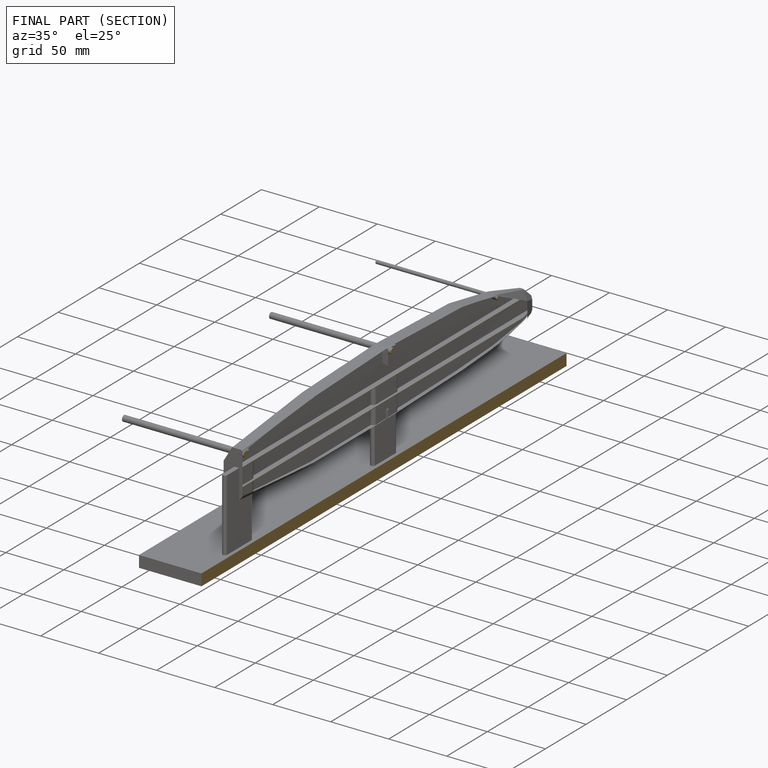
[diagram: finished part — half-section view (interior)]
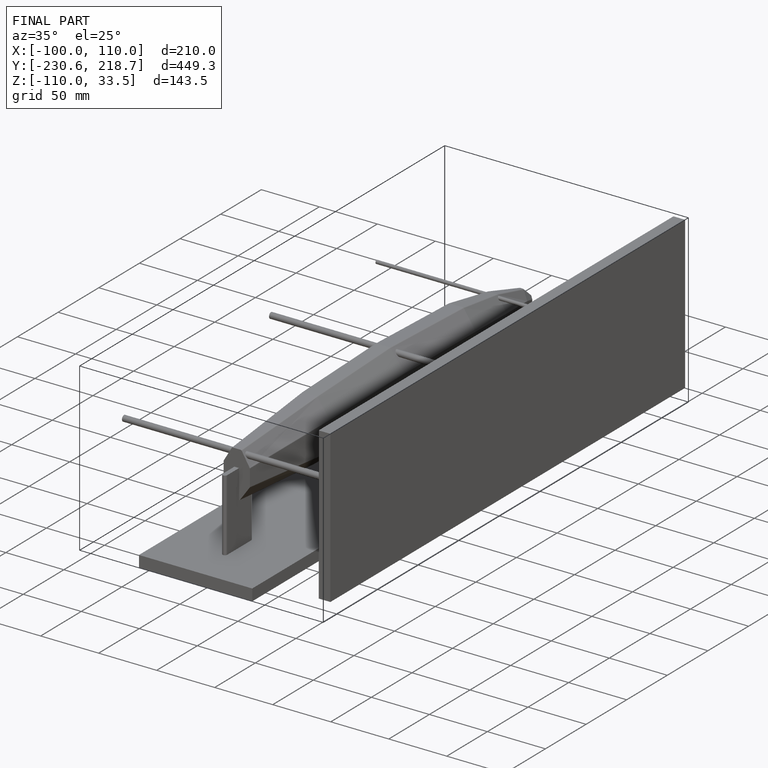
[diagram: finished part — iso view with bounding-box wireframe]
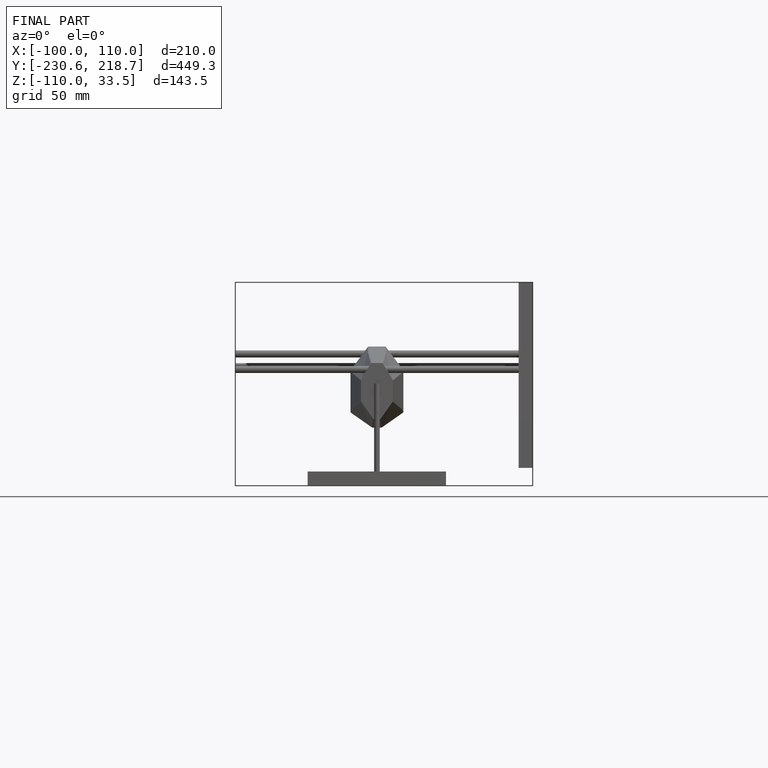
[diagram: finished part — front view with bounding-box wireframe]
